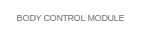
[diagram: root canvas - part 1/9, top right region]
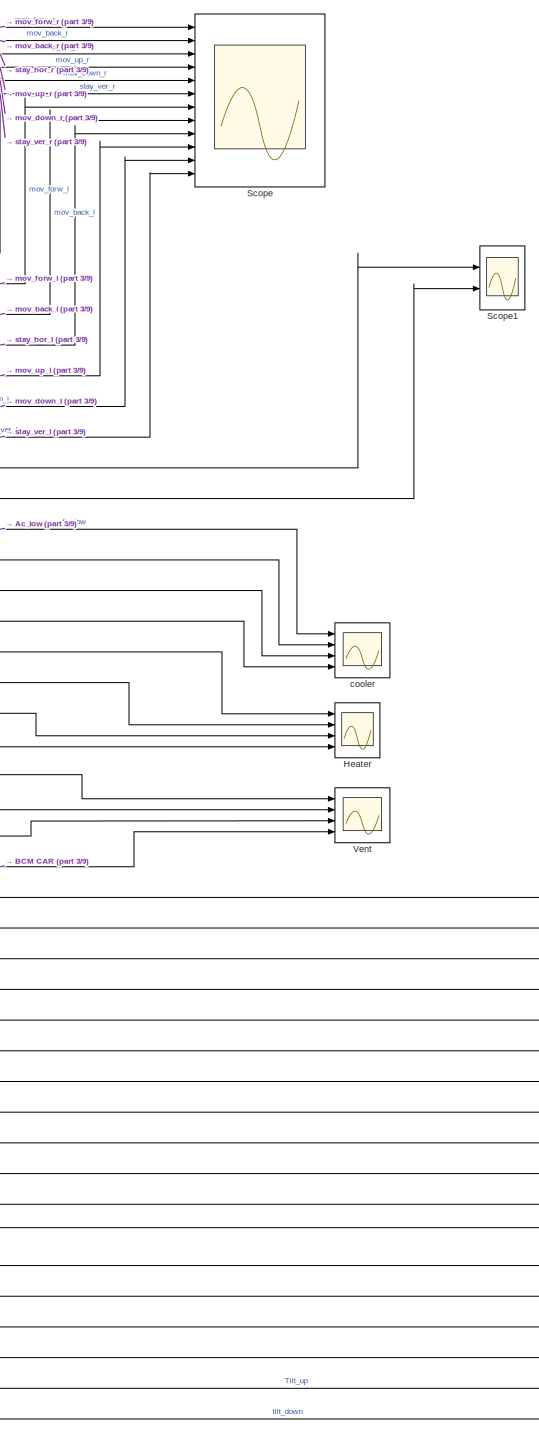
[diagram: root canvas - part 2/9, middle right region]
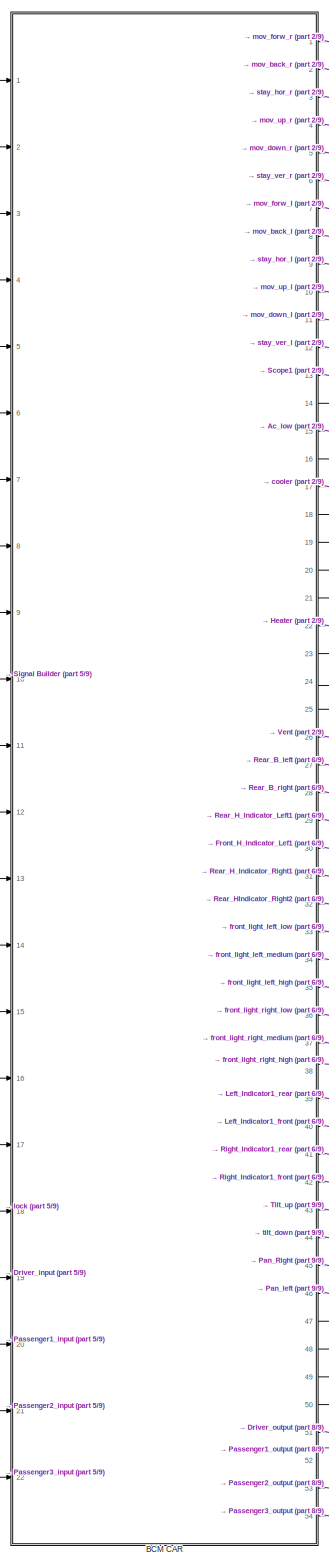
[diagram: root canvas - part 3/9, center side, full height]
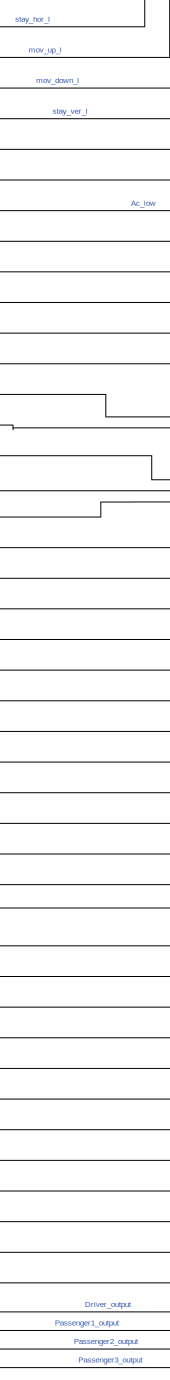
[diagram: root canvas - part 4/9, central region]
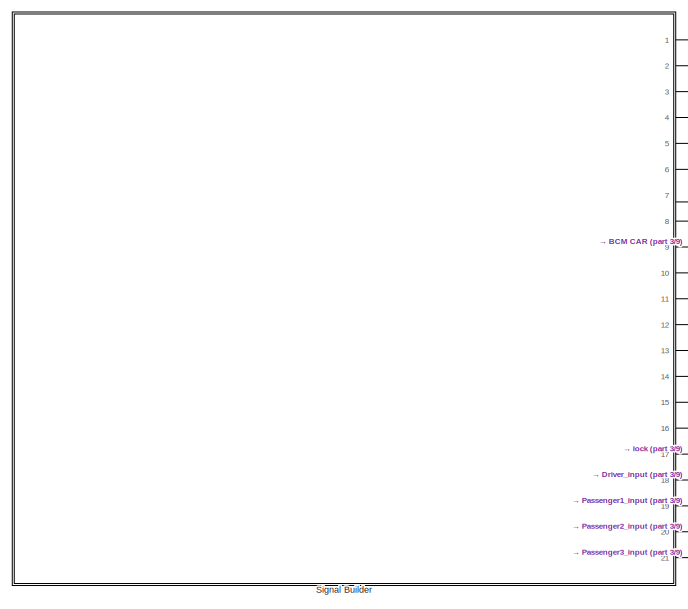
[diagram: root canvas - part 5/9, middle left region]
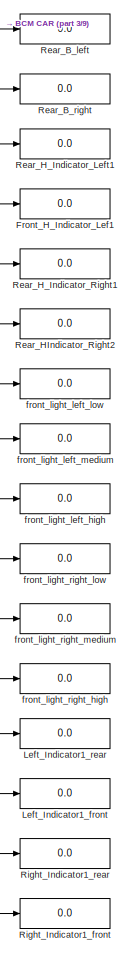
[diagram: root canvas - part 6/9, middle right region]
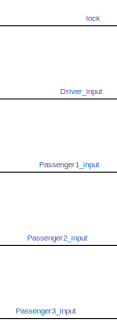
[diagram: root canvas - part 7/9, bottom center region]
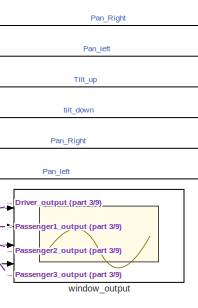
[diagram: root canvas - part 8/9, bottom right region]
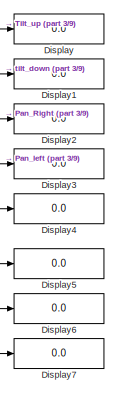
[diagram: root canvas - part 9/9, bottom right region]
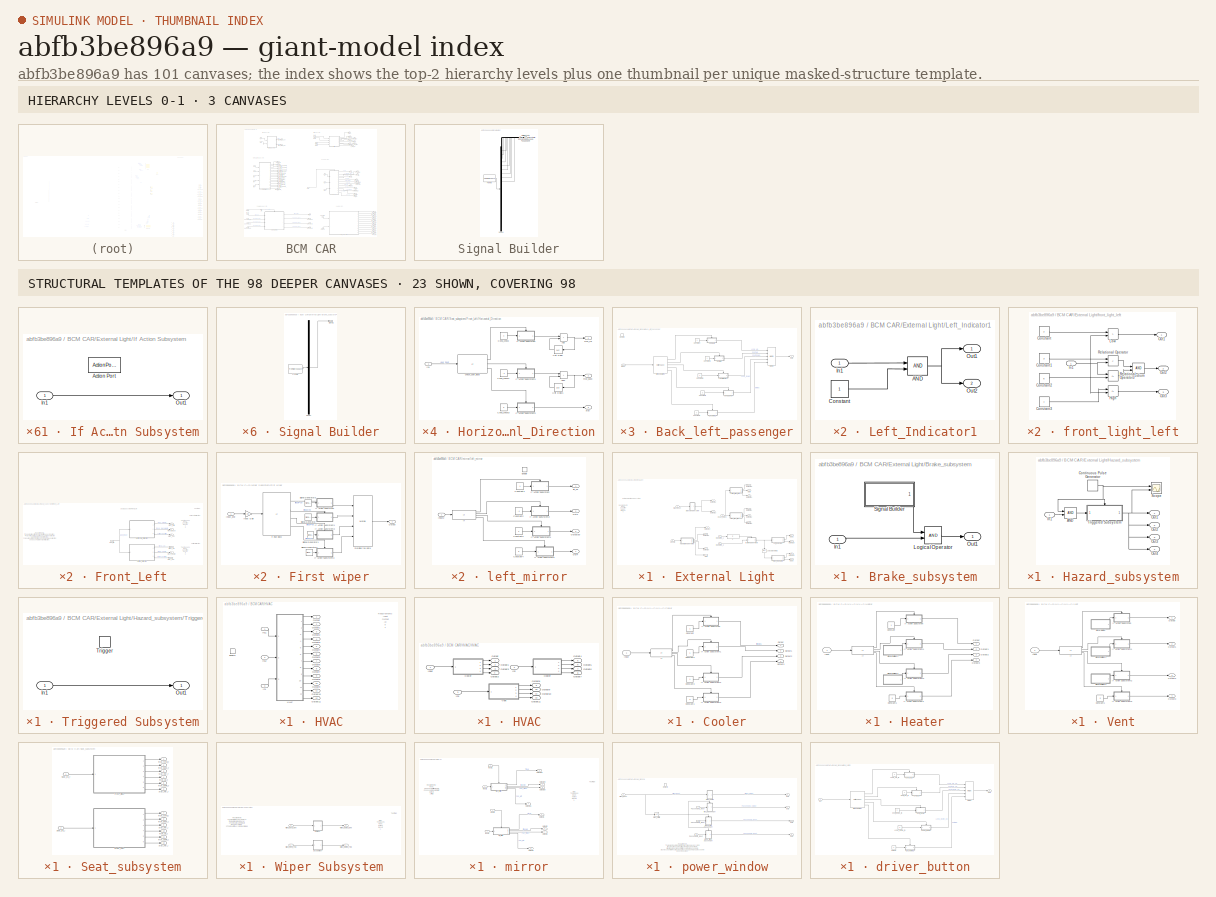
[diagram: thumbnail index - top-2 hierarchy levels (3 canvases) + 23 structural-template representatives of the remaining 98 canvases]
MODEL slx_abfb3be896a9
KIND model
CONFIG AbsTol = auto
CONFIG EnableMultiTasking = off
CONFIG FixedStep = auto
CONFIG MaxStep = auto
CONFIG MinStep = auto
CONFIG RelTol = 1e-3
CONFIG SampleTimeConstraint = Unconstrained
CONFIG SolverName = VariableStepAuto
CONFIG StartTime = 0.0
CONFIG StopTime = 10
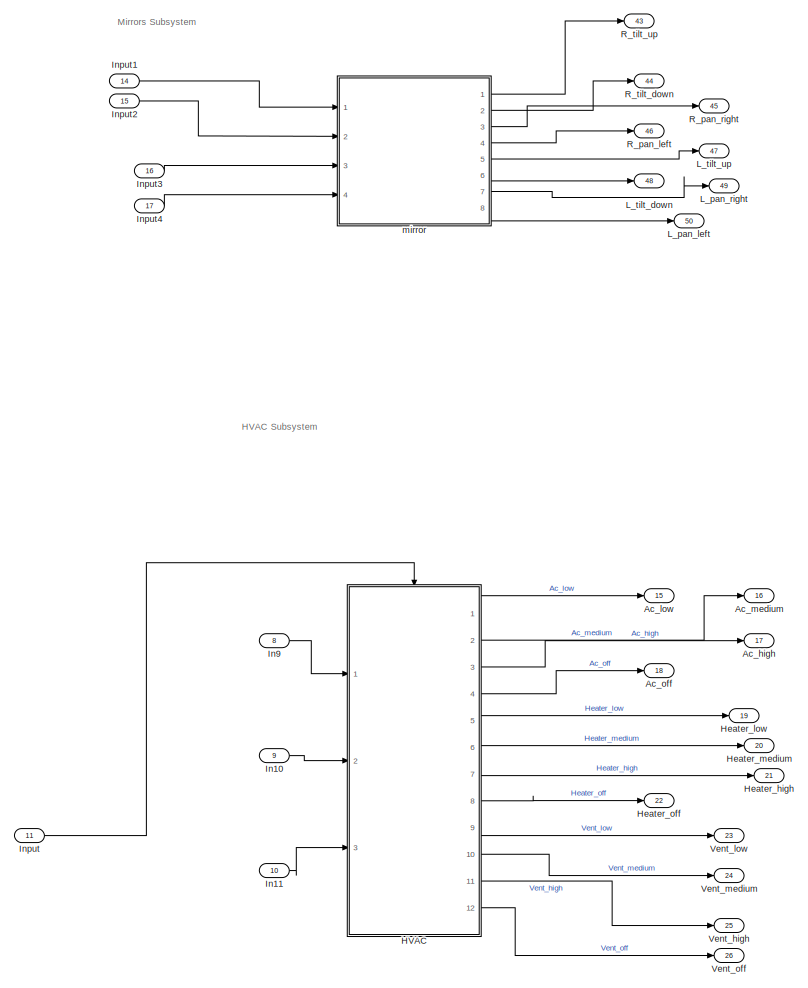
[diagram: BCM CAR - part 1/4, top right region]
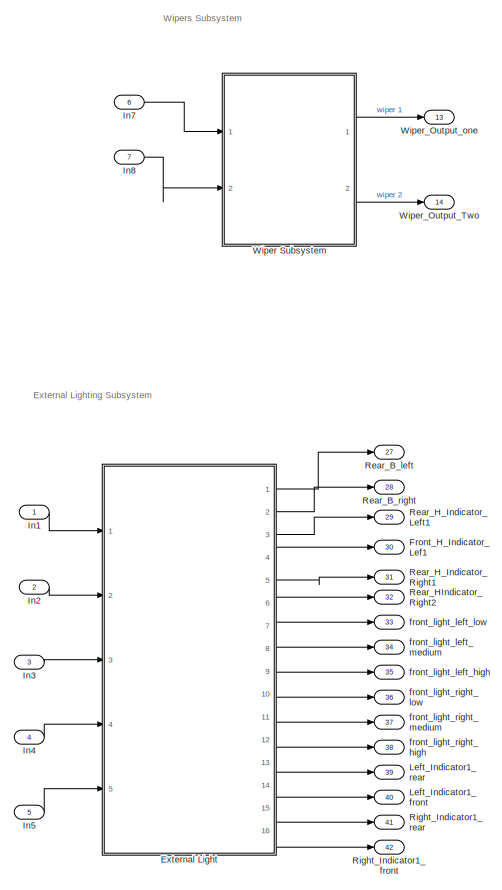
[diagram: BCM CAR - part 2/4, top left region]
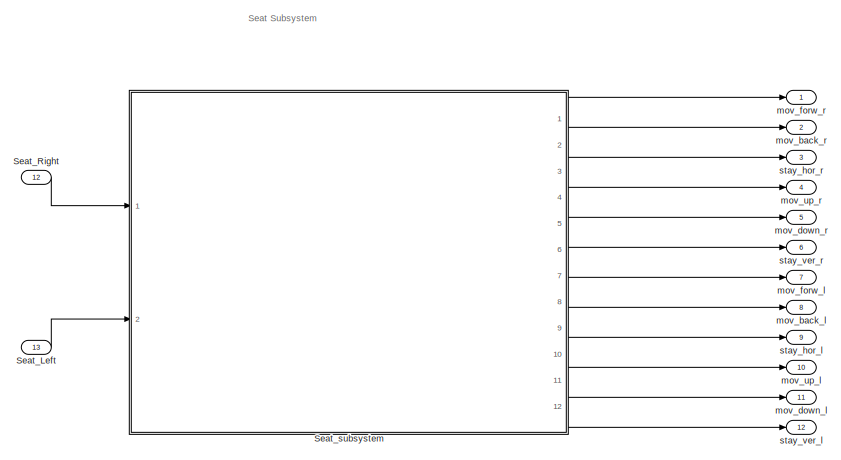
[diagram: BCM CAR - part 3/4, bottom right region]
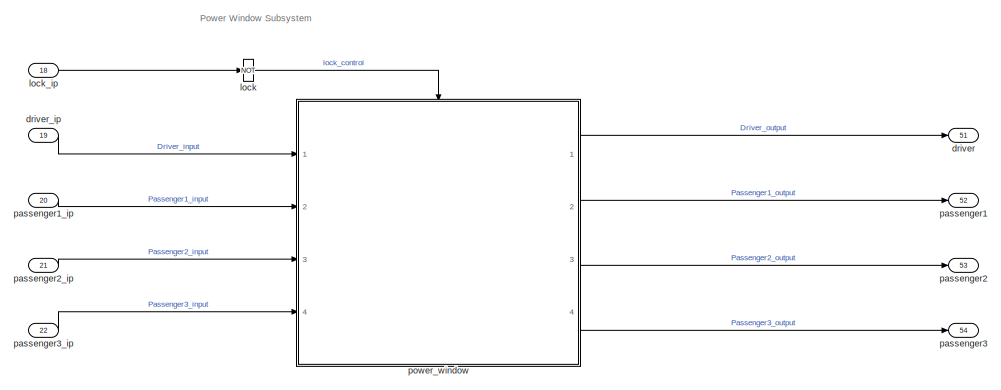
[diagram: BCM CAR - part 4/4, bottom left region]
BLOCK [SubSystem] BCM CAR
  Ports = [22, 54]
  RequestExecContextInheritance = off
BLOCK [Outport] BCM CAR/Ac_high
  Port = 17
BLOCK [Outport] BCM CAR/Ac_low
  Port = 15
BLOCK [Outport] BCM CAR/Ac_medium
  Port = 16
BLOCK [Outport] BCM CAR/Ac_off
  Port = 18
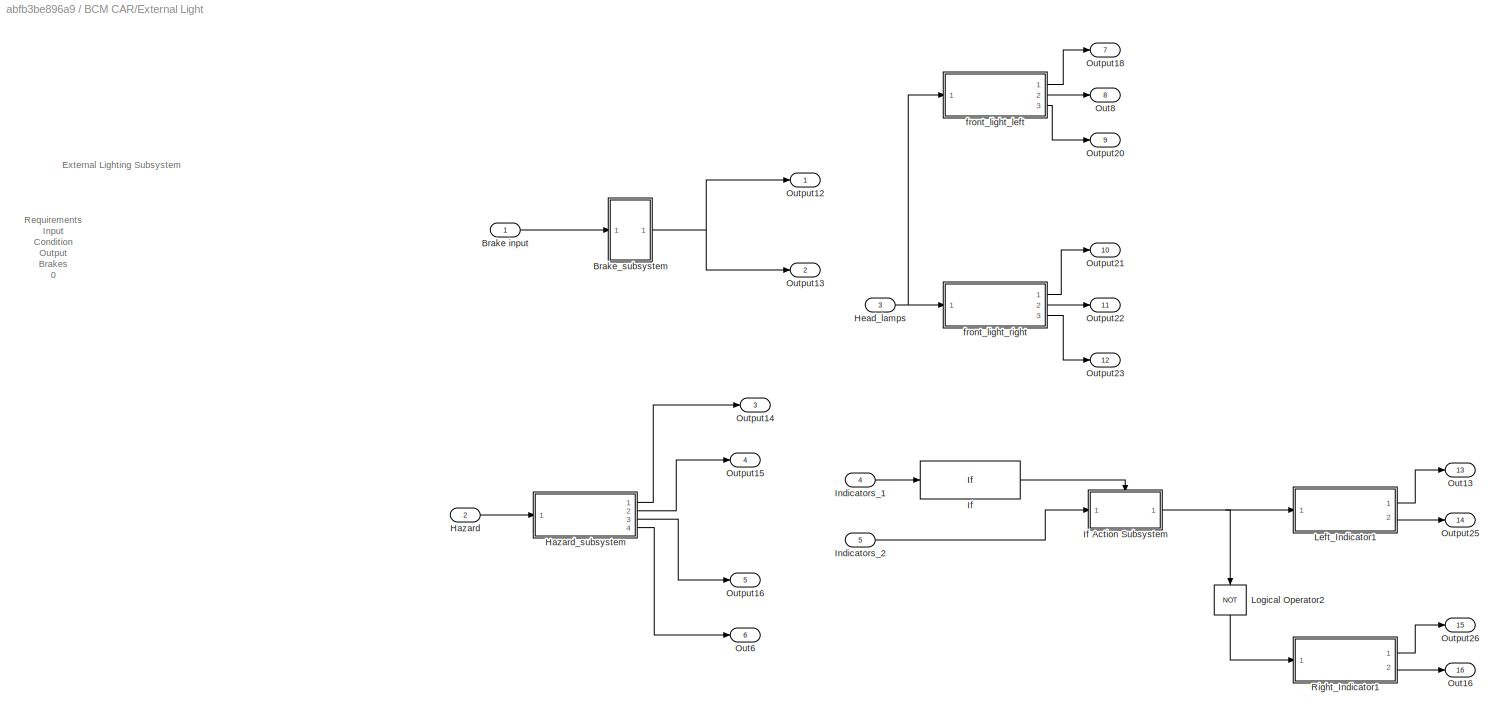
BLOCK [SubSystem] BCM CAR/External Light
  Ports = [5, 16]
  RequestExecContextInheritance = off
  TreatAsAtomicUnit = on
BLOCK [Inport] BCM CAR/External Light/Brake input
BLOCK [SubSystem] BCM CAR/External Light/Brake_subsystem
  Ports = [1, 1]
  RequestExecContextInheritance = off
BLOCK [Inport] BCM CAR/External Light/Brake_subsystem/In1
BLOCK [Logic] BCM CAR/External Light/Brake_subsystem/Logical Operator
  AllPortsSameDT = off
  OutDataTypeStr = boolean
  Ports = [2, 1]
BLOCK [Outport] BCM CAR/External Light/Brake_subsystem/Out1
BLOCK [SubSystem] BCM CAR/External Light/Brake_subsystem/Signal Builder
  ClipboardFcn = sigbuilder_block('clipboard');
  CloseFcn = sigbuilder_block('close');
  ContinueFcn = sigbuilder_block('continue');
  CopyFcn = sigbuilder_block('copy');
  DeleteFcn = sigbuilder_block('delete');
  LoadFcn = sigbuilder_block('load');
  MaskHideContents = on
  ModelCloseFcn = sigbuilder_block('modelClose');
  NameChangeFcn = sigbuilder_block('namechange');
  OpenFcn = sigbuilder_block('open',[437.6 153 550.4 359.25 ]);
  PauseFcn = sigbuilder_block('pause');
  Ports = [0, 1]
  PreSaveFcn = sigbuilder_block('preSave');
  RequestExecContextInheritance = off
  StartFcn = sigbuilder_block('start');
  StopFcn = sigbuilder_block('stop');
  Tag = STV Subsys
BLOCK [Demux] BCM CAR/External Light/Brake_subsystem/Signal Builder/Demux
  DisplayOption = none
  Outputs = 1
  Ports = [1, 1]
  Tag = STV Demux
BLOCK [FromWorkspace] BCM CAR/External Light/Brake_subsystem/Signal Builder/FromWs
  Tag = STV FromWs
  VariableName = tuvar
BLOCK [Outport] BCM CAR/External Light/Brake_subsystem/Signal Builder/Signal 1
  Tag = STV Outport
BLOCK [Inport] BCM CAR/External Light/Hazard
  Port = 2
BLOCK [SubSystem] BCM CAR/External Light/Hazard_subsystem
  Ports = [1, 4]
  RequestExecContextInheritance = off
BLOCK [Logic] BCM CAR/External Light/Hazard_subsystem/AND
  AllPortsSameDT = off
  IconShape = distinctive
  OutDataTypeStr = boolean
  Ports = [2, 1]
BLOCK [DiscretePulseGenerator] BCM CAR/External Light/Hazard_subsystem/Continuous Pulse Generator
  Period = 1
  Ports = [0, 1]
  PulseType = Time based
  PulseWidth = 50
BLOCK [Inport] BCM CAR/External Light/Hazard_subsystem/In1
BLOCK [Outport] BCM CAR/External Light/Hazard_subsystem/Out1
BLOCK [Outport] BCM CAR/External Light/Hazard_subsystem/Out2
  Port = 2
BLOCK [Outport] BCM CAR/External Light/Hazard_subsystem/Out3
  Port = 3
BLOCK [Outport] BCM CAR/External Light/Hazard_subsystem/Out4
  Port = 4
BLOCK [Scope] BCM CAR/External Light/Hazard_subsystem/Scope
  Floating = off
  NumInputPorts = 2
  Ports = [2]
  ScopeSpecificationString = Simulink.scopes.TimeScopeBlockCfg('CurrentConfiguration', extmgr.ConfigurationSet(extmgr.Configuration('Core','General UI',true),extmgr.Configuration('Core','Source UI',true),extmgr.Configuration('Sources','WiredSimulink',true),extmgr.Configuration('Visuals','Time Domain',true,'SerializedDisplays',{struct('MinYLimReal','-0.125','MaxYLimReal','1.125','YLabelReal','','MinYLimMag','0.00000','MaxYLimM...<+1427ch>
BLOCK [SubSystem] BCM CAR/External Light/Hazard_subsystem/Triggered Subsystem
  Ports = [1, 1, 0, 1]
  RequestExecContextInheritance = off
  TreatAsAtomicUnit = on
BLOCK [Inport] BCM CAR/External Light/Hazard_subsystem/Triggered Subsystem/In1
BLOCK [Outport] BCM CAR/External Light/Hazard_subsystem/Triggered Subsystem/Out1
BLOCK [TriggerPort] BCM CAR/External Light/Hazard_subsystem/Triggered Subsystem/Trigger
  Ports = []
  StatesWhenEnabling = held
  TriggerType = either
  VariantControl = Variant
BLOCK [Inport] BCM CAR/External Light/Head_lamps
  Port = 3
BLOCK [If] BCM CAR/External Light/If
  IfExpression = u1 == 1
  Ports = [1, 1]
  ShowElse = off
BLOCK [SubSystem] BCM CAR/External Light/If Action Subsystem
  Ports = [1, 1, 0, 0, 0, 0, 0, 1]
  RequestExecContextInheritance = off
  TreatAsAtomicUnit = on
BLOCK [ActionPort] BCM CAR/External Light/If Action Subsystem/Action Port
  ActionPortLabel = if(u1 == 1)
BLOCK [Inport] BCM CAR/External Light/If Action Subsystem/In1
BLOCK [Outport] BCM CAR/External Light/If Action Subsystem/Out1
BLOCK [Inport] BCM CAR/External Light/Indicators_1
  Port = 4
BLOCK [Inport] BCM CAR/External Light/Indicators_2
  Port = 5
BLOCK [SubSystem] BCM CAR/External Light/Left_Indicator1
  Ports = [1, 2]
  RequestExecContextInheritance = off
BLOCK [Logic] BCM CAR/External Light/Left_Indicator1/AND
  AllPortsSameDT = off
  IconShape = distinctive
  OutDataTypeStr = boolean
  Ports = [2, 1]
BLOCK [Constant] BCM CAR/External Light/Left_Indicator1/Constant
BLOCK [Inport] BCM CAR/External Light/Left_Indicator1/In1
BLOCK [Outport] BCM CAR/External Light/Left_Indicator1/Out1
BLOCK [Outport] BCM CAR/External Light/Left_Indicator1/Out2
  Port = 2
BLOCK [Logic] BCM CAR/External Light/Logical Operator2
  AllPortsSameDT = off
  NameLocation = left
  Operator = NOT
  OutDataTypeStr = boolean
  Ports = [1, 1]
BLOCK [Outport] BCM CAR/External Light/Out13
  Port = 13
BLOCK [Outport] BCM CAR/External Light/Out16
  Port = 16
BLOCK [Outport] BCM CAR/External Light/Out6
  Port = 6
BLOCK [Outport] BCM CAR/External Light/Out8
  Port = 8
BLOCK [Outport] BCM CAR/External Light/Output12
BLOCK [Outport] BCM CAR/External Light/Output13
  Port = 2
BLOCK [Outport] BCM CAR/External Light/Output14
  Port = 3
BLOCK [Outport] BCM CAR/External Light/Output15
  Port = 4
BLOCK [Outport] BCM CAR/External Light/Output16
  Port = 5
BLOCK [Outport] BCM CAR/External Light/Output18
  Port = 7
BLOCK [Outport] BCM CAR/External Light/Output20
  Port = 9
BLOCK [Outport] BCM CAR/External Light/Output21
  Port = 10
BLOCK [Outport] BCM CAR/External Light/Output22
  Port = 11
BLOCK [Outport] BCM CAR/External Light/Output23
  Port = 12
BLOCK [Outport] BCM CAR/External Light/Output25
  Port = 14
BLOCK [Outport] BCM CAR/External Light/Output26
  Port = 15
BLOCK [SubSystem] BCM CAR/External Light/Right_Indicator1
  Ports = [1, 2]
  RequestExecContextInheritance = off
BLOCK [Logic] BCM CAR/External Light/Right_Indicator1/AND
  AllPortsSameDT = off
  IconShape = distinctive
  OutDataTypeStr = boolean
  Ports = [2, 1]
BLOCK [Constant] BCM CAR/External Light/Right_Indicator1/Constant
BLOCK [Inport] BCM CAR/External Light/Right_Indicator1/In1
BLOCK [Outport] BCM CAR/External Light/Right_Indicator1/Out1
BLOCK [Outport] BCM CAR/External Light/Right_Indicator1/Out2
  Port = 2
BLOCK [SubSystem] BCM CAR/External Light/front_light_left
  Ports = [1, 3]
  RequestExecContextInheritance = off
BLOCK [Constant] BCM CAR/External Light/front_light_left/Constant
  Value = 2
BLOCK [Constant] BCM CAR/External Light/front_light_left/Constant1
  Value = 3
BLOCK [Constant] BCM CAR/External Light/front_light_left/Constant2
  Value = 5
BLOCK [Constant] BCM CAR/External Light/front_light_left/Constant3
  Value = 7
BLOCK [RelationalOperator] BCM CAR/External Light/front_light_left/High
  InputSameDT = off
  Operator = <=
  OutDataTypeStr = boolean
  Ports = [2, 1]
  RndMeth = Simplest
BLOCK [Inport] BCM CAR/External Light/front_light_left/In1
BLOCK [RelationalOperator] BCM CAR/External Light/front_light_left/Low
  InputSameDT = off
  Operator = >
  OutDataTypeStr = boolean
  Ports = [2, 1]
  RndMeth = Simplest
BLOCK [Logic] BCM CAR/External Light/front_light_left/Medium
  AllPortsSameDT = off
  IconShape = distinctive
  OutDataTypeStr = boolean
  Ports = [2, 1]
BLOCK [Outport] BCM CAR/External Light/front_light_left/Out1
BLOCK [Outport] BCM CAR/External Light/front_light_left/Out2
  Port = 2
BLOCK [Outport] BCM CAR/External Light/front_light_left/Out3
  Port = 3
BLOCK [RelationalOperator] BCM CAR/External Light/front_light_left/Relational Operator
  InputSameDT = off
  Operator = <
  OutDataTypeStr = boolean
  Ports = [2, 1]
  RndMeth = Simplest
BLOCK [RelationalOperator] BCM CAR/External Light/front_light_left/Relational Operator3
  InputSameDT = off
  Operator = <=
  OutDataTypeStr = boolean
  Ports = [2, 1]
  RndMeth = Simplest
BLOCK [SubSystem] BCM CAR/External Light/front_light_right
  Ports = [1, 3]
  RequestExecContextInheritance = off
BLOCK [Constant] BCM CAR/External Light/front_light_right/Constant
  Value = 2
BLOCK [Constant] BCM CAR/External Light/front_light_right/Constant1
  Value = 3
BLOCK [Constant] BCM CAR/External Light/front_light_right/Constant2
  Value = 5
BLOCK [Constant] BCM CAR/External Light/front_light_right/Constant3
  Value = 7
BLOCK [RelationalOperator] BCM CAR/External Light/front_light_right/High
  InputSameDT = off
  Operator = <=
  OutDataTypeStr = boolean
  Ports = [2, 1]
  RndMeth = Simplest
BLOCK [Inport] BCM CAR/External Light/front_light_right/In1
BLOCK [RelationalOperator] BCM CAR/External Light/front_light_right/Low
  InputSameDT = off
  Operator = >
  OutDataTypeStr = boolean
  Ports = [2, 1]
  RndMeth = Simplest
BLOCK [Logic] BCM CAR/External Light/front_light_right/Medium
  AllPortsSameDT = off
  IconShape = distinctive
  OutDataTypeStr = boolean
  Ports = [2, 1]
BLOCK [Outport] BCM CAR/External Light/front_light_right/Out1
BLOCK [Outport] BCM CAR/External Light/front_light_right/Out2
  Port = 2
BLOCK [Outport] BCM CAR/External Light/front_light_right/Out3
  Port = 3
BLOCK [RelationalOperator] BCM CAR/External Light/front_light_right/Relational Operator
  InputSameDT = off
  Operator = <
  OutDataTypeStr = boolean
  Ports = [2, 1]
  RndMeth = Simplest
BLOCK [RelationalOperator] BCM CAR/External Light/front_light_right/Relational Operator3
  InputSameDT = off
  Operator = <=
  OutDataTypeStr = boolean
  Ports = [2, 1]
  RndMeth = Simplest
BLOCK [Outport] BCM CAR/Front_H_Indicator_Lef1
  Port = 30
BLOCK [SubSystem] BCM CAR/HVAC
  Ports = [3, 12, 1]
  RequestExecContextInheritance = off
BLOCK [EnablePort] BCM CAR/HVAC/Enable
  Ports = []
BLOCK [SubSystem] BCM CAR/HVAC/HVAC
  Ports = [3, 12]
  RequestExecContextInheritance = off
BLOCK [SubSystem] BCM CAR/HVAC/HVAC/Cooler
  Ports = [1, 4]
  RequestExecContextInheritance = off
BLOCK [Constant] BCM CAR/HVAC/HVAC/Cooler/Constant
BLOCK [Constant] BCM CAR/HVAC/HVAC/Cooler/Constant1
  Value = 0
BLOCK [Constant] BCM CAR/HVAC/HVAC/Cooler/Constant2
BLOCK [Constant] BCM CAR/HVAC/HVAC/Cooler/Constant3
BLOCK [If] BCM CAR/HVAC/HVAC/Cooler/If
  ElseIfExpressions = u1 == 2, u1 == 3
  IfExpression = u1 == 1
  Ports = [1, 4]
BLOCK [SubSystem] BCM CAR/HVAC/HVAC/Cooler/If Action Subsystem
  Ports = [1, 1, 0, 0, 0, 0, 0, 1]
  RequestExecContextInheritance = off
  TreatAsAtomicUnit = on
BLOCK [ActionPort] BCM CAR/HVAC/HVAC/Cooler/If Action Subsystem/Action Port
  ActionPortLabel = if(u1 == 1)
BLOCK [Inport] BCM CAR/HVAC/HVAC/Cooler/If Action Subsystem/In1
BLOCK [Outport] BCM CAR/HVAC/HVAC/Cooler/If Action Subsystem/Out1
BLOCK [SubSystem] BCM CAR/HVAC/HVAC/Cooler/If Action Subsystem1
  Ports = [1, 1, 0, 0, 0, 0, 0, 1]
  RequestExecContextInheritance = off
  TreatAsAtomicUnit = on
BLOCK [ActionPort] BCM CAR/HVAC/HVAC/Cooler/If Action Subsystem1/Action Port
  ActionPortLabel = elseif(u1 == 2)
BLOCK [Inport] BCM CAR/HVAC/HVAC/Cooler/If Action Subsystem1/In1
BLOCK [Outport] BCM CAR/HVAC/HVAC/Cooler/If Action Subsystem1/Output1
BLOCK [SubSystem] BCM CAR/HVAC/HVAC/Cooler/If Action Subsystem2
  Ports = [1, 1, 0, 0, 0, 0, 0, 1]
  RequestExecContextInheritance = off
  TreatAsAtomicUnit = on
BLOCK [ActionPort] BCM CAR/HVAC/HVAC/Cooler/If Action Subsystem2/Action Port
  ActionPortLabel = elseif( u1 == 3)
BLOCK [Inport] BCM CAR/HVAC/HVAC/Cooler/If Action Subsystem2/In1
BLOCK [Outport] BCM CAR/HVAC/HVAC/Cooler/If Action Subsystem2/Out1
BLOCK [SubSystem] BCM CAR/HVAC/HVAC/Cooler/If Action Subsystem3
  Ports = [1, 1, 0, 0, 0, 0, 0, 1]
  RequestExecContextInheritance = off
  TreatAsAtomicUnit = on
BLOCK [ActionPort] BCM CAR/HVAC/HVAC/Cooler/If Action Subsystem3/Action Port
  ActionPortLabel = else
BLOCK [Inport] BCM CAR/HVAC/HVAC/Cooler/If Action Subsystem3/In1
BLOCK [Outport] BCM CAR/HVAC/HVAC/Cooler/If Action Subsystem3/Out1
BLOCK [Inport] BCM CAR/HVAC/HVAC/Cooler/Input
BLOCK [Outport] BCM CAR/HVAC/HVAC/Cooler/Output
BLOCK [Outport] BCM CAR/HVAC/HVAC/Cooler/Output1
  Port = 2
BLOCK [Outport] BCM CAR/HVAC/HVAC/Cooler/Output2
  Port = 3
BLOCK [Outport] BCM CAR/HVAC/HVAC/Cooler/Output3
  Port = 4
BLOCK [SubSystem] BCM CAR/HVAC/HVAC/Heater
  Ports = [1, 4]
  RequestExecContextInheritance = off
BLOCK [Constant] BCM CAR/HVAC/HVAC/Heater/Constant
BLOCK [Constant] BCM CAR/HVAC/HVAC/Heater/Constant1
  Value = 0
BLOCK [If] BCM CAR/HVAC/HVAC/Heater/If
  ElseIfExpressions = u1 == 2, u1 == 3
  IfExpression = u1 == 1
  Ports = [1, 4]
BLOCK [SubSystem] BCM CAR/HVAC/HVAC/Heater/If Action Subsystem
  Ports = [1, 1, 0, 0, 0, 0, 0, 1]
  RequestExecContextInheritance = off
  TreatAsAtomicUnit = on
BLOCK [ActionPort] BCM CAR/HVAC/HVAC/Heater/If Action Subsystem/Action Port
  ActionPortLabel = if(u1 == 1)
BLOCK [Inport] BCM CAR/HVAC/HVAC/Heater/If Action Subsystem/In1
BLOCK [Outport] BCM CAR/HVAC/HVAC/Heater/If Action Subsystem/Output
BLOCK [SubSystem] BCM CAR/HVAC/HVAC/Heater/If Action Subsystem1
  Ports = [1, 1, 0, 0, 0, 0, 0, 1]
  RequestExecContextInheritance = off
  TreatAsAtomicUnit = on
BLOCK [ActionPort] BCM CAR/HVAC/HVAC/Heater/If Action Subsystem1/Action Port
  ActionPortLabel = elseif(u1 == 2)
BLOCK [Inport] BCM CAR/HVAC/HVAC/Heater/If Action Subsystem1/In1
BLOCK [Outport] BCM CAR/HVAC/HVAC/Heater/If Action Subsystem1/Out1
BLOCK [SubSystem] BCM CAR/HVAC/HVAC/Heater/If Action Subsystem2
  Ports = [1, 1, 0, 0, 0, 0, 0, 1]
  RequestExecContextInheritance = off
  TreatAsAtomicUnit = on
BLOCK [ActionPort] BCM CAR/HVAC/HVAC/Heater/If Action Subsystem2/Action Port
  ActionPortLabel = elseif( u1 == 3)
BLOCK [Inport] BCM CAR/HVAC/HVAC/Heater/If Action Subsystem2/In1
BLOCK [Outport] BCM CAR/HVAC/HVAC/Heater/If Action Subsystem2/Out1
BLOCK [SubSystem] BCM CAR/HVAC/HVAC/Heater/If Action Subsystem3
  Ports = [1, 1, 0, 0, 0, 0, 0, 1]
  RequestExecContextInheritance = off
  TreatAsAtomicUnit = on
BLOCK [ActionPort] BCM CAR/HVAC/HVAC/Heater/If Action Subsystem3/Action Port
  ActionPortLabel = else
BLOCK [Inport] BCM CAR/HVAC/HVAC/Heater/If Action Subsystem3/In1
BLOCK [Outport] BCM CAR/HVAC/HVAC/Heater/If Action Subsystem3/Out1
BLOCK [Inport] BCM CAR/HVAC/HVAC/Heater/Input
BLOCK [Outport] BCM CAR/HVAC/HVAC/Heater/Output
BLOCK [Outport] BCM CAR/HVAC/HVAC/Heater/Output1
  Port = 2
BLOCK [Outport] BCM CAR/HVAC/HVAC/Heater/Output2
  Port = 3
BLOCK [Outport] BCM CAR/HVAC/HVAC/Heater/Output3
  Port = 4
BLOCK [SubSystem] BCM CAR/HVAC/HVAC/Heater/Signal Builder1
  ClipboardFcn = sigbuilder_block('clipboard');
  CloseFcn = sigbuilder_block('close');
  ContinueFcn = sigbuilder_block('continue');
  CopyFcn = sigbuilder_block('copy');
  DeleteFcn = sigbuilder_block('delete');
  LoadFcn = sigbuilder_block('load');
  MaskHideContents = on
  ModelCloseFcn = sigbuilder_block('modelClose');
  NameChangeFcn = sigbuilder_block('namechange');
  OpenFcn = sigbuilder_block('open',[437.6 153 550.4 359.25 ]);
  PauseFcn = sigbuilder_block('pause');
  Ports = [0, 1]
  PreSaveFcn = sigbuilder_block('preSave');
  RequestExecContextInheritance = off
  StartFcn = sigbuilder_block('start');
  StopFcn = sigbuilder_block('stop');
  Tag = STV Subsys
BLOCK [Demux] BCM CAR/HVAC/HVAC/Heater/Signal Builder1/Demux
  DisplayOption = none
  Outputs = 1
  Ports = [1, 1]
  Tag = STV Demux
BLOCK [FromWorkspace] BCM CAR/HVAC/HVAC/Heater/Signal Builder1/FromWs
  Tag = STV FromWs
  VariableName = tuvar
BLOCK [Outport] BCM CAR/HVAC/HVAC/Heater/Signal Builder1/Signal 2
  Tag = STV Outport
BLOCK [SubSystem] BCM CAR/HVAC/HVAC/Heater/Signal Builder2
  ClipboardFcn = sigbuilder_block('clipboard');
  CloseFcn = sigbuilder_block('close');
  ContinueFcn = sigbuilder_block('continue');
  CopyFcn = sigbuilder_block('copy');
  DeleteFcn = sigbuilder_block('delete');
  LoadFcn = sigbuilder_block('load');
  MaskHideContents = on
  ModelCloseFcn = sigbuilder_block('modelClose');
  NameChangeFcn = sigbuilder_block('namechange');
  OpenFcn = sigbuilder_block('open',[437.6 153 550.4 359.25 ]);
  PauseFcn = sigbuilder_block('pause');
  Ports = [0, 1]
  PreSaveFcn = sigbuilder_block('preSave');
  RequestExecContextInheritance = off
  StartFcn = sigbuilder_block('start');
  StopFcn = sigbuilder_block('stop');
  Tag = STV Subsys
BLOCK [Demux] BCM CAR/HVAC/HVAC/Heater/Signal Builder2/Demux
  DisplayOption = none
  Outputs = 1
  Ports = [1, 1]
  Tag = STV Demux
BLOCK [FromWorkspace] BCM CAR/HVAC/HVAC/Heater/Signal Builder2/FromWs
  Tag = STV FromWs
  VariableName = tuvar
BLOCK [Outport] BCM CAR/HVAC/HVAC/Heater/Signal Builder2/Signal 1
  Tag = STV Outport
BLOCK [Inport] BCM CAR/HVAC/HVAC/In2
  Port = 2
BLOCK [Inport] BCM CAR/HVAC/HVAC/In3
  Port = 3
BLOCK [Inport] BCM CAR/HVAC/HVAC/Input
BLOCK [Outport] BCM CAR/HVAC/HVAC/Output
BLOCK [Outport] BCM CAR/HVAC/HVAC/Output1
  Port = 2
BLOCK [Outport] BCM CAR/HVAC/HVAC/Output10
  Port = 11
BLOCK [Outport] BCM CAR/HVAC/HVAC/Output11
  Port = 12
BLOCK [Outport] BCM CAR/HVAC/HVAC/Output2
  Port = 4
BLOCK [Outport] BCM CAR/HVAC/HVAC/Output3
  Port = 3
BLOCK [Outport] BCM CAR/HVAC/HVAC/Output4
  Port = 5
BLOCK [Outport] BCM CAR/HVAC/HVAC/Output5
  Port = 6
BLOCK [Outport] BCM CAR/HVAC/HVAC/Output6
  Port = 7
BLOCK [Outport] BCM CAR/HVAC/HVAC/Output7
  Port = 8
BLOCK [Outport] BCM CAR/HVAC/HVAC/Output8
  Port = 9
BLOCK [Outport] BCM CAR/HVAC/HVAC/Output9
  Port = 10
BLOCK [SubSystem] BCM CAR/HVAC/HVAC/Vent
  Ports = [1, 4]
  RequestExecContextInheritance = off
BLOCK [Constant] BCM CAR/HVAC/HVAC/Vent/Constant1
  Value = 0
BLOCK [If] BCM CAR/HVAC/HVAC/Vent/If
  ElseIfExpressions = u1 == 2, u1 == 3
  IfExpression = u1 == 1
  Ports = [1, 4]
BLOCK [SubSystem] BCM CAR/HVAC/HVAC/Vent/If Action Subsystem
  Ports = [1, 1, 0, 0, 0, 0, 0, 1]
  RequestExecContextInheritance = off
  TreatAsAtomicUnit = on
BLOCK [ActionPort] BCM CAR/HVAC/HVAC/Vent/If Action Subsystem/Action Port
  ActionPortLabel = if(u1 == 1)
BLOCK [Inport] BCM CAR/HVAC/HVAC/Vent/If Action Subsystem/In1
BLOCK [Outport] BCM CAR/HVAC/HVAC/Vent/If Action Subsystem/Output
BLOCK [SubSystem] BCM CAR/HVAC/HVAC/Vent/If Action Subsystem1
  Ports = [1, 1, 0, 0, 0, 0, 0, 1]
  RequestExecContextInheritance = off
  TreatAsAtomicUnit = on
BLOCK [ActionPort] BCM CAR/HVAC/HVAC/Vent/If Action Subsystem1/Action Port
  ActionPortLabel = elseif(u1 == 2)
BLOCK [Inport] BCM CAR/HVAC/HVAC/Vent/If Action Subsystem1/In1
BLOCK [Outport] BCM CAR/HVAC/HVAC/Vent/If Action Subsystem1/Out1
BLOCK [SubSystem] BCM CAR/HVAC/HVAC/Vent/If Action Subsystem2
  Ports = [1, 1, 0, 0, 0, 0, 0, 1]
  RequestExecContextInheritance = off
  TreatAsAtomicUnit = on
BLOCK [ActionPort] BCM CAR/HVAC/HVAC/Vent/If Action Subsystem2/Action Port
  ActionPortLabel = elseif( u1 == 3)
BLOCK [Inport] BCM CAR/HVAC/HVAC/Vent/If Action Subsystem2/In1
BLOCK [Outport] BCM CAR/HVAC/HVAC/Vent/If Action Subsystem2/Output2
BLOCK [SubSystem] BCM CAR/HVAC/HVAC/Vent/If Action Subsystem3
  Ports = [1, 1, 0, 0, 0, 0, 0, 1]
  RequestExecContextInheritance = off
  TreatAsAtomicUnit = on
BLOCK [ActionPort] BCM CAR/HVAC/HVAC/Vent/If Action Subsystem3/Action Port
  ActionPortLabel = else
BLOCK [Inport] BCM CAR/HVAC/HVAC/Vent/If Action Subsystem3/In1
BLOCK [Outport] BCM CAR/HVAC/HVAC/Vent/If Action Subsystem3/Output3
BLOCK [Inport] BCM CAR/HVAC/HVAC/Vent/Input
BLOCK [Outport] BCM CAR/HVAC/HVAC/Vent/Output
BLOCK [Outport] BCM CAR/HVAC/HVAC/Vent/Output1
  Port = 2
BLOCK [Outport] BCM CAR/HVAC/HVAC/Vent/Output2
  Port = 3
BLOCK [Outport] BCM CAR/HVAC/HVAC/Vent/Output3
  Port = 4
BLOCK [SubSystem] BCM CAR/HVAC/HVAC/Vent/Signal Builder
  ClipboardFcn = sigbuilder_block('clipboard');
  CloseFcn = sigbuilder_block('close');
  ContinueFcn = sigbuilder_block('continue');
  CopyFcn = sigbuilder_block('copy');
  DeleteFcn = sigbuilder_block('delete');
  LoadFcn = sigbuilder_block('load');
  MaskHideContents = on
  ModelCloseFcn = sigbuilder_block('modelClose');
  NameChangeFcn = sigbuilder_block('namechange');
  OpenFcn = sigbuilder_block('open',[437.6 153 550.4 359.25 ]);
  PauseFcn = sigbuilder_block('pause');
  Ports = [0, 1]
  PreSaveFcn = sigbuilder_block('preSave');
  RequestExecContextInheritance = off
  StartFcn = sigbuilder_block('start');
  StopFcn = sigbuilder_block('stop');
  Tag = STV Subsys
BLOCK [Demux] BCM CAR/HVAC/HVAC/Vent/Signal Builder/Demux
  DisplayOption = none
  Outputs = 1
  Ports = [1, 1]
  Tag = STV Demux
BLOCK [FromWorkspace] BCM CAR/HVAC/HVAC/Vent/Signal Builder/FromWs
  Tag = STV FromWs
  VariableName = tuvar
BLOCK [Outport] BCM CAR/HVAC/HVAC/Vent/Signal Builder/Signal 2
  Tag = STV Outport
BLOCK [SubSystem] BCM CAR/HVAC/HVAC/Vent/Signal Builder1
  ClipboardFcn = sigbuilder_block('clipboard');
  CloseFcn = sigbuilder_block('close');
  ContinueFcn = sigbuilder_block('continue');
  CopyFcn = sigbuilder_block('copy');
  DeleteFcn = sigbuilder_block('delete');
  LoadFcn = sigbuilder_block('load');
  MaskHideContents = on
  ModelCloseFcn = sigbuilder_block('modelClose');
  NameChangeFcn = sigbuilder_block('namechange');
  OpenFcn = sigbuilder_block('open',[437.6 153 550.4 359.25 ]);
  PauseFcn = sigbuilder_block('pause');
  Ports = [0, 1]
  PreSaveFcn = sigbuilder_block('preSave');
  RequestExecContextInheritance = off
  StartFcn = sigbuilder_block('start');
  StopFcn = sigbuilder_block('stop');
  Tag = STV Subsys
BLOCK [Demux] BCM CAR/HVAC/HVAC/Vent/Signal Builder1/Demux
  DisplayOption = none
  Outputs = 1
  Ports = [1, 1]
  Tag = STV Demux
BLOCK [FromWorkspace] BCM CAR/HVAC/HVAC/Vent/Signal Builder1/FromWs
  Tag = STV FromWs
  VariableName = tuvar
BLOCK [Outport] BCM CAR/HVAC/HVAC/Vent/Signal Builder1/Signal 2
  Tag = STV Outport
BLOCK [SubSystem] BCM CAR/HVAC/HVAC/Vent/Signal Builder2
  ClipboardFcn = sigbuilder_block('clipboard');
  CloseFcn = sigbuilder_block('close');
  ContinueFcn = sigbuilder_block('continue');
  CopyFcn = sigbuilder_block('copy');
  DeleteFcn = sigbuilder_block('delete');
  LoadFcn = sigbuilder_block('load');
  MaskHideContents = on
  ModelCloseFcn = sigbuilder_block('modelClose');
  NameChangeFcn = sigbuilder_block('namechange');
  OpenFcn = sigbuilder_block('open',[437.6 153 550.4 359.25 ]);
  PauseFcn = sigbuilder_block('pause');
  Ports = [0, 1]
  PreSaveFcn = sigbuilder_block('preSave');
  RequestExecContextInheritance = off
  StartFcn = sigbuilder_block('start');
  StopFcn = sigbuilder_block('stop');
  Tag = STV Subsys
BLOCK [Demux] BCM CAR/HVAC/HVAC/Vent/Signal Builder2/Demux
  DisplayOption = none
  Outputs = 1
  Ports = [1, 1]
  Tag = STV Demux
BLOCK [FromWorkspace] BCM CAR/HVAC/HVAC/Vent/Signal Builder2/FromWs
  Tag = STV FromWs
  VariableName = tuvar
BLOCK [Outport] BCM CAR/HVAC/HVAC/Vent/Signal Builder2/Signal 1
  Tag = STV Outport
BLOCK [Inport] BCM CAR/HVAC/In1
  Port = 3
BLOCK [Inport] BCM CAR/HVAC/In11
BLOCK [Inport] BCM CAR/HVAC/In12
  Port = 2
BLOCK [Outport] BCM CAR/HVAC/Output
BLOCK [Outport] BCM CAR/HVAC/Output1
  Port = 2
BLOCK [Outport] BCM CAR/HVAC/Output10
  Port = 11
BLOCK [Outport] BCM CAR/HVAC/Output11
  Port = 12
BLOCK [Outport] BCM CAR/HVAC/Output2
  Port = 3
BLOCK [Outport] BCM CAR/HVAC/Output3
  Port = 4
BLOCK [Outport] BCM CAR/HVAC/Output4
  Port = 5
BLOCK [Outport] BCM CAR/HVAC/Output5
  Port = 6
BLOCK [Outport] BCM CAR/HVAC/Output6
  Port = 7
BLOCK [Outport] BCM CAR/HVAC/Output7
  Port = 8
BLOCK [Outport] BCM CAR/HVAC/Output8
  Port = 9
BLOCK [Outport] BCM CAR/HVAC/Output9
  Port = 10
BLOCK [Outport] BCM CAR/Heater_high
  Port = 21
BLOCK [Outport] BCM CAR/Heater_low
  Port = 19
BLOCK [Outport] BCM CAR/Heater_medium
  Port = 20
BLOCK [Outport] BCM CAR/Heater_off
  Port = 22
BLOCK [Inport] BCM CAR/In1
BLOCK [Inport] BCM CAR/In10
  Port = 9
BLOCK [Inport] BCM CAR/In11
  Port = 10
BLOCK [Inport] BCM CAR/In2
  Port = 2
BLOCK [Inport] BCM CAR/In3
  Port = 3
BLOCK [Inport] BCM CAR/In4
  Port = 4
BLOCK [Inport] BCM CAR/In5
  Port = 5
BLOCK [Inport] BCM CAR/In7
  Port = 6
BLOCK [Inport] BCM CAR/In8
  Port = 7
BLOCK [Inport] BCM CAR/In9
  Port = 8
BLOCK [Inport] BCM CAR/Input
  Port = 11
BLOCK [Inport] BCM CAR/Input1
  Port = 14
BLOCK [Inport] BCM CAR/Input2
  Port = 15
BLOCK [Inport] BCM CAR/Input3
  Port = 16
BLOCK [Inport] BCM CAR/Input4
  Port = 17
BLOCK [Outport] BCM CAR/L_pan_left
  Port = 50
BLOCK [Outport] BCM CAR/L_pan_right
  Port = 49
BLOCK [Outport] BCM CAR/L_tilt_down
  Port = 48
BLOCK [Outport] BCM CAR/L_tilt_up
  Port = 47
BLOCK [Outport] BCM CAR/Left_Indicator1_front
  Port = 40
BLOCK [Outport] BCM CAR/Left_Indicator1_rear
  Port = 39
BLOCK [Outport] BCM CAR/R_pan_left
  Port = 46
BLOCK [Outport] BCM CAR/R_pan_right
  Port = 45
BLOCK [Outport] BCM CAR/R_tilt_down
  Port = 44
BLOCK [Outport] BCM CAR/R_tilt_up
  Port = 43
BLOCK [Outport] BCM CAR/Rear_B_left
  Port = 27
BLOCK [Outport] BCM CAR/Rear_B_right
  Port = 28
BLOCK [Outport] BCM CAR/Rear_HIndicator_Right2
  Port = 32
BLOCK [Outport] BCM CAR/Rear_H_Indicator_Left1
  Port = 29
BLOCK [Outport] BCM CAR/Rear_H_Indicator_Right1
  Port = 31
BLOCK [Outport] BCM CAR/Right_Indicator1_front
  Port = 42
BLOCK [Outport] BCM CAR/Right_Indicator1_rear
  Port = 41
BLOCK [Inport] BCM CAR/Seat_Left
  Port = 13
BLOCK [Inport] BCM CAR/Seat_Right
  Port = 12
BLOCK [SubSystem] BCM CAR/Seat_subsystem
  Ports = [2, 12]
  RequestExecContextInheritance = off
  TreatAsAtomicUnit = on
BLOCK [SubSystem] BCM CAR/Seat_subsystem/Front_Left
  Ports = [1, 6]
  RequestExecContextInheritance = off
  TreatAsAtomicUnit = on
BLOCK [SubSystem] BCM CAR/Seat_subsystem/Front_Left/Horizontal_Direction
  Ports = [1, 3]
  RequestExecContextInheritance = off
  TreatAsAtomicUnit = on
BLOCK [Sum] BCM CAR/Seat_subsystem/Front_Left/Horizontal_Direction/Add
  IconShape = rectangular
  Ports = [2, 1]
BLOCK [Sum] BCM CAR/Seat_subsystem/Front_Left/Horizontal_Direction/Add1
  IconShape = rectangular
  Ports = [2, 1]
BLOCK [Constant] BCM CAR/Seat_subsystem/Front_Left/Horizontal_Direction/Cond_check
BLOCK [Constant] BCM CAR/Seat_subsystem/Front_Left/Horizontal_Direction/Cond_check1
  Value = -1
BLOCK [Constant] BCM CAR/Seat_subsystem/Front_Left/Horizontal_Direction/Cond_check3
  Value = 0
BLOCK [SubSystem] BCM CAR/Seat_subsystem/Front_Left/Horizontal_Direction/If Action Subsystem
  Ports = [1, 1, 0, 0, 0, 0, 0, 1]
  RequestExecContextInheritance = off
  TreatAsAtomicUnit = on
BLOCK [ActionPort] BCM CAR/Seat_subsystem/Front_Left/Horizontal_Direction/If Action Subsystem/Action Port
  ActionPortLabel = if(u1 == 1)
BLOCK [Inport] BCM CAR/Seat_subsystem/Front_Left/Horizontal_Direction/If Action Subsystem/In1
BLOCK [Outport] BCM CAR/Seat_subsystem/Front_Left/Horizontal_Direction/If Action Subsystem/Out1
BLOCK [SubSystem] BCM CAR/Seat_subsystem/Front_Left/Horizontal_Direction/If Action Subsystem1
  Ports = [1, 1, 0, 0, 0, 0, 0, 1]
  RequestExecContextInheritance = off
  TreatAsAtomicUnit = on
BLOCK [ActionPort] BCM CAR/Seat_subsystem/Front_Left/Horizontal_Direction/If Action Subsystem1/Action Port
  ActionPortLabel = elseif(u1 == -1)
BLOCK [Inport] BCM CAR/Seat_subsystem/Front_Left/Horizontal_Direction/If Action Subsystem1/In1
BLOCK [Outport] BCM CAR/Seat_subsystem/Front_Left/Horizontal_Direction/If Action Subsystem1/Out1
BLOCK [SubSystem] BCM CAR/Seat_subsystem/Front_Left/Horizontal_Direction/If Action Subsystem2
  Ports = [1, 1, 0, 0, 0, 0, 0, 1]
  RequestExecContextInheritance = off
  TreatAsAtomicUnit = on
BLOCK [ActionPort] BCM CAR/Seat_subsystem/Front_Left/Horizontal_Direction/If Action Subsystem2/Action Port
  ActionPortLabel = else
BLOCK [Inport] BCM CAR/Seat_subsystem/Front_Left/Horizontal_Direction/If Action Subsystem2/In1
BLOCK [Outport] BCM CAR/Seat_subsystem/Front_Left/Horizontal_Direction/If Action Subsystem2/Out1
BLOCK [Inport] BCM CAR/Seat_subsystem/Front_Left/Horizontal_Direction/In1
BLOCK [UnitDelay] BCM CAR/Seat_subsystem/Front_Left/Horizontal_Direction/Unit Delay
  HasFrameUpgradeWarning = on
  SampleTime = -1
BLOCK [UnitDelay] BCM CAR/Seat_subsystem/Front_Left/Horizontal_Direction/Unit Delay1
  HasFrameUpgradeWarning = on
  SampleTime = -1
BLOCK [If] BCM CAR/Seat_subsystem/Front_Left/Horizontal_Direction/check_user_input
  ElseIfExpressions = u1 == -1
  IfExpression = u1 == 1
  Ports = [1, 3]
BLOCK [Outport] BCM CAR/Seat_subsystem/Front_Left/Horizontal_Direction/mov_back
  Port = 2
BLOCK [Outport] BCM CAR/Seat_subsystem/Front_Left/Horizontal_Direction/mov_for
BLOCK [Outport] BCM CAR/Seat_subsystem/Front_Left/Horizontal_Direction/stay
  Port = 3
BLOCK [Inport] BCM CAR/Seat_subsystem/Front_Left/Seat_i//p
BLOCK [SubSystem] BCM CAR/Seat_subsystem/Front_Left/Vertical_Direction
  Ports = [1, 3]
  RequestExecContextInheritance = off
  TreatAsAtomicUnit = on
BLOCK [Sum] BCM CAR/Seat_subsystem/Front_Left/Vertical_Direction/Add
  IconShape = rectangular
  Ports = [2, 1]
BLOCK [Sum] BCM CAR/Seat_subsystem/Front_Left/Vertical_Direction/Add1
  IconShape = rectangular
  Ports = [2, 1]
BLOCK [Constant] BCM CAR/Seat_subsystem/Front_Left/Vertical_Direction/Cond_check
BLOCK [Constant] BCM CAR/Seat_subsystem/Front_Left/Vertical_Direction/Cond_check1
  Value = -1
BLOCK [Constant] BCM CAR/Seat_subsystem/Front_Left/Vertical_Direction/Cond_check3
  Value = 0
BLOCK [SubSystem] BCM CAR/Seat_subsystem/Front_Left/Vertical_Direction/If Action Subsystem
  Ports = [1, 1, 0, 0, 0, 0, 0, 1]
  RequestExecContextInheritance = off
  TreatAsAtomicUnit = on
BLOCK [ActionPort] BCM CAR/Seat_subsystem/Front_Left/Vertical_Direction/If Action Subsystem/Action Port
  ActionPortLabel = if(u1 == 1)
BLOCK [Inport] BCM CAR/Seat_subsystem/Front_Left/Vertical_Direction/If Action Subsystem/In1
BLOCK [Outport] BCM CAR/Seat_subsystem/Front_Left/Vertical_Direction/If Action Subsystem/Out1
BLOCK [SubSystem] BCM CAR/Seat_subsystem/Front_Left/Vertical_Direction/If Action Subsystem1
  Ports = [1, 1, 0, 0, 0, 0, 0, 1]
  RequestExecContextInheritance = off
  TreatAsAtomicUnit = on
BLOCK [ActionPort] BCM CAR/Seat_subsystem/Front_Left/Vertical_Direction/If Action Subsystem1/Action Port
  ActionPortLabel = elseif(u1 == -1)
BLOCK [Inport] BCM CAR/Seat_subsystem/Front_Left/Vertical_Direction/If Action Subsystem1/In1
BLOCK [Outport] BCM CAR/Seat_subsystem/Front_Left/Vertical_Direction/If Action Subsystem1/Out1
BLOCK [SubSystem] BCM CAR/Seat_subsystem/Front_Left/Vertical_Direction/If Action Subsystem2
  Ports = [1, 1, 0, 0, 0, 0, 0, 1]
  RequestExecContextInheritance = off
  TreatAsAtomicUnit = on
BLOCK [ActionPort] BCM CAR/Seat_subsystem/Front_Left/Vertical_Direction/If Action Subsystem2/Action Port
  ActionPortLabel = else
BLOCK [Inport] BCM CAR/Seat_subsystem/Front_Left/Vertical_Direction/If Action Subsystem2/In1
BLOCK [Outport] BCM CAR/Seat_subsystem/Front_Left/Vertical_Direction/If Action Subsystem2/Out1
BLOCK [UnitDelay] BCM CAR/Seat_subsystem/Front_Left/Vertical_Direction/Unit Delay
  HasFrameUpgradeWarning = on
  SampleTime = -1
BLOCK [UnitDelay] BCM CAR/Seat_subsystem/Front_Left/Vertical_Direction/Unit Delay1
  HasFrameUpgradeWarning = on
  SampleTime = -1
BLOCK [If] BCM CAR/Seat_subsystem/Front_Left/Vertical_Direction/check_user_input
  ElseIfExpressions = u1 == -1
  IfExpression = u1 == 1
  Ports = [1, 3]
BLOCK [Outport] BCM CAR/Seat_subsystem/Front_Left/Vertical_Direction/mov_down
  Port = 2
BLOCK [Outport] BCM CAR/Seat_subsystem/Front_Left/Vertical_Direction/mov_up
BLOCK [Outport] BCM CAR/Seat_subsystem/Front_Left/Vertical_Direction/stay
  Port = 3
BLOCK [Inport] BCM CAR/Seat_subsystem/Front_Left/Vertical_Direction/user_input
BLOCK [Outport] BCM CAR/Seat_subsystem/Front_Left/mov_back
  Port = 2
BLOCK [Outport] BCM CAR/Seat_subsystem/Front_Left/mov_down
  Port = 5
BLOCK [Outport] BCM CAR/Seat_subsystem/Front_Left/mov_forw
BLOCK [Outport] BCM CAR/Seat_subsystem/Front_Left/mov_up
  Port = 4
BLOCK [Outport] BCM CAR/Seat_subsystem/Front_Left/stay_hor
  Port = 3
BLOCK [Outport] BCM CAR/Seat_subsystem/Front_Left/stay_ver
  Port = 6
BLOCK [SubSystem] BCM CAR/Seat_subsystem/Front_Right
  Ports = [1, 6]
  RequestExecContextInheritance = off
  TreatAsAtomicUnit = on
BLOCK [SubSystem] BCM CAR/Seat_subsystem/Front_Right/Horizontal_Direction
  Ports = [1, 3]
  RequestExecContextInheritance = off
  TreatAsAtomicUnit = on
BLOCK [Sum] BCM CAR/Seat_subsystem/Front_Right/Horizontal_Direction/Add
  IconShape = rectangular
  Ports = [2, 1]
BLOCK [Sum] BCM CAR/Seat_subsystem/Front_Right/Horizontal_Direction/Add1
  IconShape = rectangular
  Ports = [2, 1]
BLOCK [Constant] BCM CAR/Seat_subsystem/Front_Right/Horizontal_Direction/Cond_check
BLOCK [Constant] BCM CAR/Seat_subsystem/Front_Right/Horizontal_Direction/Cond_check1
  Value = -1
BLOCK [Constant] BCM CAR/Seat_subsystem/Front_Right/Horizontal_Direction/Cond_check3
  Value = 0
BLOCK [SubSystem] BCM CAR/Seat_subsystem/Front_Right/Horizontal_Direction/If Action Subsystem
  Ports = [1, 1, 0, 0, 0, 0, 0, 1]
  RequestExecContextInheritance = off
  TreatAsAtomicUnit = on
BLOCK [ActionPort] BCM CAR/Seat_subsystem/Front_Right/Horizontal_Direction/If Action Subsystem/Action Port
  ActionPortLabel = if(u1 == 1)
BLOCK [Inport] BCM CAR/Seat_subsystem/Front_Right/Horizontal_Direction/If Action Subsystem/In1
BLOCK [Outport] BCM CAR/Seat_subsystem/Front_Right/Horizontal_Direction/If Action Subsystem/Out1
BLOCK [SubSystem] BCM CAR/Seat_subsystem/Front_Right/Horizontal_Direction/If Action Subsystem1
  Ports = [1, 1, 0, 0, 0, 0, 0, 1]
  RequestExecContextInheritance = off
  TreatAsAtomicUnit = on
BLOCK [ActionPort] BCM CAR/Seat_subsystem/Front_Right/Horizontal_Direction/If Action Subsystem1/Action Port
  ActionPortLabel = elseif(u1 == -1)
BLOCK [Inport] BCM CAR/Seat_subsystem/Front_Right/Horizontal_Direction/If Action Subsystem1/In1
BLOCK [Outport] BCM CAR/Seat_subsystem/Front_Right/Horizontal_Direction/If Action Subsystem1/Out1
BLOCK [SubSystem] BCM CAR/Seat_subsystem/Front_Right/Horizontal_Direction/If Action Subsystem2
  Ports = [1, 1, 0, 0, 0, 0, 0, 1]
  RequestExecContextInheritance = off
  TreatAsAtomicUnit = on
BLOCK [ActionPort] BCM CAR/Seat_subsystem/Front_Right/Horizontal_Direction/If Action Subsystem2/Action Port
  ActionPortLabel = else
BLOCK [Inport] BCM CAR/Seat_subsystem/Front_Right/Horizontal_Direction/If Action Subsystem2/In1
BLOCK [Outport] BCM CAR/Seat_subsystem/Front_Right/Horizontal_Direction/If Action Subsystem2/Out1
BLOCK [Inport] BCM CAR/Seat_subsystem/Front_Right/Horizontal_Direction/In1
BLOCK [UnitDelay] BCM CAR/Seat_subsystem/Front_Right/Horizontal_Direction/Unit Delay
  HasFrameUpgradeWarning = on
  SampleTime = -1
BLOCK [UnitDelay] BCM CAR/Seat_subsystem/Front_Right/Horizontal_Direction/Unit Delay1
  HasFrameUpgradeWarning = on
  SampleTime = -1
BLOCK [If] BCM CAR/Seat_subsystem/Front_Right/Horizontal_Direction/check_user_input
  ElseIfExpressions = u1 == -1
  IfExpression = u1 == 1
  Ports = [1, 3]
BLOCK [Outport] BCM CAR/Seat_subsystem/Front_Right/Horizontal_Direction/mov_back
  Port = 2
BLOCK [Outport] BCM CAR/Seat_subsystem/Front_Right/Horizontal_Direction/mov_for
BLOCK [Outport] BCM CAR/Seat_subsystem/Front_Right/Horizontal_Direction/stay
  Port = 3
BLOCK [Inport] BCM CAR/Seat_subsystem/Front_Right/Seat_i//p
BLOCK [SubSystem] BCM CAR/Seat_subsystem/Front_Right/Vertical_Direction
  Ports = [1, 3]
  RequestExecContextInheritance = off
  TreatAsAtomicUnit = on
BLOCK [Sum] BCM CAR/Seat_subsystem/Front_Right/Vertical_Direction/Add
  IconShape = rectangular
  Ports = [2, 1]
BLOCK [Sum] BCM CAR/Seat_subsystem/Front_Right/Vertical_Direction/Add1
  IconShape = rectangular
  Ports = [2, 1]
BLOCK [Constant] BCM CAR/Seat_subsystem/Front_Right/Vertical_Direction/Cond_check
BLOCK [Constant] BCM CAR/Seat_subsystem/Front_Right/Vertical_Direction/Cond_check1
  Value = -1
BLOCK [Constant] BCM CAR/Seat_subsystem/Front_Right/Vertical_Direction/Cond_check3
  Value = 0
BLOCK [SubSystem] BCM CAR/Seat_subsystem/Front_Right/Vertical_Direction/If Action Subsystem
  Ports = [1, 1, 0, 0, 0, 0, 0, 1]
  RequestExecContextInheritance = off
  TreatAsAtomicUnit = on
BLOCK [ActionPort] BCM CAR/Seat_subsystem/Front_Right/Vertical_Direction/If Action Subsystem/Action Port
  ActionPortLabel = if(u1 == 1)
BLOCK [Inport] BCM CAR/Seat_subsystem/Front_Right/Vertical_Direction/If Action Subsystem/In1
BLOCK [Outport] BCM CAR/Seat_subsystem/Front_Right/Vertical_Direction/If Action Subsystem/Out1
BLOCK [SubSystem] BCM CAR/Seat_subsystem/Front_Right/Vertical_Direction/If Action Subsystem1
  Ports = [1, 1, 0, 0, 0, 0, 0, 1]
  RequestExecContextInheritance = off
  TreatAsAtomicUnit = on
BLOCK [ActionPort] BCM CAR/Seat_subsystem/Front_Right/Vertical_Direction/If Action Subsystem1/Action Port
  ActionPortLabel = elseif(u1 == -1)
BLOCK [Inport] BCM CAR/Seat_subsystem/Front_Right/Vertical_Direction/If Action Subsystem1/In1
BLOCK [Outport] BCM CAR/Seat_subsystem/Front_Right/Vertical_Direction/If Action Subsystem1/Out1
BLOCK [SubSystem] BCM CAR/Seat_subsystem/Front_Right/Vertical_Direction/If Action Subsystem2
  Ports = [1, 1, 0, 0, 0, 0, 0, 1]
  RequestExecContextInheritance = off
  TreatAsAtomicUnit = on
BLOCK [ActionPort] BCM CAR/Seat_subsystem/Front_Right/Vertical_Direction/If Action Subsystem2/Action Port
  ActionPortLabel = else
BLOCK [Inport] BCM CAR/Seat_subsystem/Front_Right/Vertical_Direction/If Action Subsystem2/In1
BLOCK [Outport] BCM CAR/Seat_subsystem/Front_Right/Vertical_Direction/If Action Subsystem2/Out1
BLOCK [UnitDelay] BCM CAR/Seat_subsystem/Front_Right/Vertical_Direction/Unit Delay
  HasFrameUpgradeWarning = on
  SampleTime = -1
BLOCK [UnitDelay] BCM CAR/Seat_subsystem/Front_Right/Vertical_Direction/Unit Delay1
  HasFrameUpgradeWarning = on
  SampleTime = -1
BLOCK [If] BCM CAR/Seat_subsystem/Front_Right/Vertical_Direction/check_user_input
  ElseIfExpressions = u1 == -1
  IfExpression = u1 == 1
  Ports = [1, 3]
BLOCK [Outport] BCM CAR/Seat_subsystem/Front_Right/Vertical_Direction/mov_back
  Port = 2
BLOCK [Outport] BCM CAR/Seat_subsystem/Front_Right/Vertical_Direction/mov_up
BLOCK [Outport] BCM CAR/Seat_subsystem/Front_Right/Vertical_Direction/stay
  Port = 3
BLOCK [Inport] BCM CAR/Seat_subsystem/Front_Right/Vertical_Direction/user_input
BLOCK [Outport] BCM CAR/Seat_subsystem/Front_Right/mov_back
  Port = 2
BLOCK [Outport] BCM CAR/Seat_subsystem/Front_Right/mov_down
  Port = 5
BLOCK [Outport] BCM CAR/Seat_subsystem/Front_Right/mov_forw
BLOCK [Outport] BCM CAR/Seat_subsystem/Front_Right/mov_up
  Port = 4
BLOCK [Outport] BCM CAR/Seat_subsystem/Front_Right/stay_hor
  Port = 3
BLOCK [Outport] BCM CAR/Seat_subsystem/Front_Right/stay_ver
  Port = 6
BLOCK [Inport] BCM CAR/Seat_subsystem/Seat_i//p_l
  Port = 2
BLOCK [Inport] BCM CAR/Seat_subsystem/Seat_i//p_r
BLOCK [Outport] BCM CAR/Seat_subsystem/mov_back_l
  Port = 8
BLOCK [Outport] BCM CAR/Seat_subsystem/mov_back_r
  Port = 2
BLOCK [Outport] BCM CAR/Seat_subsystem/mov_down_l
  Port = 11
BLOCK [Outport] BCM CAR/Seat_subsystem/mov_down_r
  Port = 5
BLOCK [Outport] BCM CAR/Seat_subsystem/mov_forw_l
  Port = 7
BLOCK [Outport] BCM CAR/Seat_subsystem/mov_forw_r
BLOCK [Outport] BCM CAR/Seat_subsystem/mov_up_l
  Port = 10
BLOCK [Outport] BCM CAR/Seat_subsystem/mov_up_r
  Port = 4
BLOCK [Outport] BCM CAR/Seat_subsystem/stay_hor_l
  Port = 9
BLOCK [Outport] BCM CAR/Seat_subsystem/stay_hor_r
  Port = 3
BLOCK [Outport] BCM CAR/Seat_subsystem/stay_ver_l
  Port = 12
BLOCK [Outport] BCM CAR/Seat_subsystem/stay_ver_r
  Port = 6
BLOCK [Outport] BCM CAR/Vent_high
  Port = 25
BLOCK [Outport] BCM CAR/Vent_low
  Port = 23
BLOCK [Outport] BCM CAR/Vent_medium
  Port = 24
BLOCK [Outport] BCM CAR/Vent_off
  Port = 26
BLOCK [SubSystem] BCM CAR/Wiper Subsystem
  Ports = [2, 2]
  RequestExecContextInheritance = off
  TreatAsAtomicUnit = on
BLOCK [SubSystem] BCM CAR/Wiper Subsystem/First wiper
  Ports = [1, 1]
  RequestExecContextInheritance = off
BLOCK [SubSystem] BCM CAR/Wiper Subsystem/First wiper/If Action Subsystem
  Ports = [1, 1, 0, 0, 0, 0, 0, 1]
  RequestExecContextInheritance = off
  TreatAsAtomicUnit = on
BLOCK [ActionPort] BCM CAR/Wiper Subsystem/First wiper/If Action Subsystem/Action Port
  ActionPortLabel = if(u1<=20)
BLOCK [Inport] BCM CAR/Wiper Subsystem/First wiper/If Action Subsystem/In1
BLOCK [Outport] BCM CAR/Wiper Subsystem/First wiper/If Action Subsystem/Out1
BLOCK [SubSystem] BCM CAR/Wiper Subsystem/First wiper/If Action Subsystem1
  Ports = [1, 1, 0, 0, 0, 0, 0, 1]
  RequestExecContextInheritance = off
  TreatAsAtomicUnit = on
BLOCK [ActionPort] BCM CAR/Wiper Subsystem/First wiper/If Action Subsystem1/Action Port
  ActionPortLabel = elseif(u1<=40)
BLOCK [Inport] BCM CAR/Wiper Subsystem/First wiper/If Action Subsystem1/In1
BLOCK [Outport] BCM CAR/Wiper Subsystem/First wiper/If Action Subsystem1/Out1
BLOCK [SubSystem] BCM CAR/Wiper Subsystem/First wiper/If Action Subsystem2
  Ports = [1, 1, 0, 0, 0, 0, 0, 1]
  RequestExecContextInheritance = off
  TreatAsAtomicUnit = on
BLOCK [ActionPort] BCM CAR/Wiper Subsystem/First wiper/If Action Subsystem2/Action Port
  ActionPortLabel = elseif(u1<=60)
BLOCK [Inport] BCM CAR/Wiper Subsystem/First wiper/If Action Subsystem2/In1
BLOCK [Outport] BCM CAR/Wiper Subsystem/First wiper/If Action Subsystem2/Out1
BLOCK [SubSystem] BCM CAR/Wiper Subsystem/First wiper/If Action Subsystem3
  Ports = [1, 1, 0, 0, 0, 0, 0, 1]
  RequestExecContextInheritance = off
  TreatAsAtomicUnit = on
BLOCK [ActionPort] BCM CAR/Wiper Subsystem/First wiper/If Action Subsystem3/Action Port
  ActionPortLabel = else
BLOCK [Inport] BCM CAR/Wiper Subsystem/First wiper/If Action Subsystem3/In1
BLOCK [Outport] BCM CAR/Wiper Subsystem/First wiper/If Action Subsystem3/Out1
BLOCK [Gain] BCM CAR/Wiper Subsystem/First wiper/Input Gain
  Gain = 20
BLOCK [Inport] BCM CAR/Wiper Subsystem/First wiper/Input_one
BLOCK [Outport] BCM CAR/Wiper Subsystem/First wiper/Output
BLOCK [SignalGenerator] BCM CAR/Wiper Subsystem/First wiper/Signal Generator
  Ports = [0, 1]
  Units = rad/sec
BLOCK [SignalGenerator] BCM CAR/Wiper Subsystem/First wiper/Signal Generator1
  Frequency = 2
  Ports = [0, 1]
  Units = rad/sec
BLOCK [SignalGenerator] BCM CAR/Wiper Subsystem/First wiper/Signal Generator2
  Frequency = 3
  Ports = [0, 1]
  Units = rad/sec
BLOCK [SignalGenerator] BCM CAR/Wiper Subsystem/First wiper/Signal Generator3
  Ports = [0, 1]
  Units = rad/sec
BLOCK [If] BCM CAR/Wiper Subsystem/First wiper/if else block
  ElseIfExpressions = u1<=40,u1<=60
  IfExpression = u1<=20
  Ports = [1, 4]
BLOCK [Merge] BCM CAR/Wiper Subsystem/First wiper/merging the data 
  Inputs = 4
  Ports = [4, 1]
BLOCK [SubSystem] BCM CAR/Wiper Subsystem/Secod wiper
  Ports = [1, 1]
  RequestExecContextInheritance = off
BLOCK [SubSystem] BCM CAR/Wiper Subsystem/Secod wiper/If Action Subsystem
  Ports = [1, 1, 0, 0, 0, 0, 0, 1]
  RequestExecContextInheritance = off
  TreatAsAtomicUnit = on
BLOCK [ActionPort] BCM CAR/Wiper Subsystem/Secod wiper/If Action Subsystem/Action Port
  ActionPortLabel = if(u1<=20)
BLOCK [Inport] BCM CAR/Wiper Subsystem/Secod wiper/If Action Subsystem/In1
BLOCK [Outport] BCM CAR/Wiper Subsystem/Secod wiper/If Action Subsystem/Out1
BLOCK [SubSystem] BCM CAR/Wiper Subsystem/Secod wiper/If Action Subsystem1
  Ports = [1, 1, 0, 0, 0, 0, 0, 1]
  RequestExecContextInheritance = off
  TreatAsAtomicUnit = on
BLOCK [ActionPort] BCM CAR/Wiper Subsystem/Secod wiper/If Action Subsystem1/Action Port
  ActionPortLabel = elseif(u1<=40)
BLOCK [Inport] BCM CAR/Wiper Subsystem/Secod wiper/If Action Subsystem1/In1
BLOCK [Outport] BCM CAR/Wiper Subsystem/Secod wiper/If Action Subsystem1/Out1
BLOCK [SubSystem] BCM CAR/Wiper Subsystem/Secod wiper/If Action Subsystem2
  Ports = [1, 1, 0, 0, 0, 0, 0, 1]
  RequestExecContextInheritance = off
  TreatAsAtomicUnit = on
BLOCK [ActionPort] BCM CAR/Wiper Subsystem/Secod wiper/If Action Subsystem2/Action Port
  ActionPortLabel = elseif(u1<=60)
BLOCK [Inport] BCM CAR/Wiper Subsystem/Secod wiper/If Action Subsystem2/In1
BLOCK [Outport] BCM CAR/Wiper Subsystem/Secod wiper/If Action Subsystem2/Out1
BLOCK [SubSystem] BCM CAR/Wiper Subsystem/Secod wiper/If Action Subsystem3
  Ports = [1, 1, 0, 0, 0, 0, 0, 1]
  RequestExecContextInheritance = off
  TreatAsAtomicUnit = on
BLOCK [ActionPort] BCM CAR/Wiper Subsystem/Secod wiper/If Action Subsystem3/Action Port
  ActionPortLabel = else
BLOCK [Inport] BCM CAR/Wiper Subsystem/Secod wiper/If Action Subsystem3/In1
BLOCK [Outport] BCM CAR/Wiper Subsystem/Secod wiper/If Action Subsystem3/Out1
BLOCK [Gain] BCM CAR/Wiper Subsystem/Secod wiper/Input Gain
  Gain = 20
BLOCK [Inport] BCM CAR/Wiper Subsystem/Secod wiper/Input_one
BLOCK [Outport] BCM CAR/Wiper Subsystem/Secod wiper/Out1
BLOCK [SignalGenerator] BCM CAR/Wiper Subsystem/Secod wiper/Signal Generator
  Ports = [0, 1]
  Units = rad/sec
BLOCK [SignalGenerator] BCM CAR/Wiper Subsystem/Secod wiper/Signal Generator1
  Frequency = 2
  Ports = [0, 1]
  Units = rad/sec
BLOCK [SignalGenerator] BCM CAR/Wiper Subsystem/Secod wiper/Signal Generator2
  Frequency = 3
  Ports = [0, 1]
  Units = rad/sec
BLOCK [SignalGenerator] BCM CAR/Wiper Subsystem/Secod wiper/Signal Generator3
  Ports = [0, 1]
  Units = rad/sec
BLOCK [If] BCM CAR/Wiper Subsystem/Secod wiper/if else block
  ElseIfExpressions = u1<=40,u1<=60
  IfExpression = u1<=20
  Ports = [1, 4]
BLOCK [Merge] BCM CAR/Wiper Subsystem/Secod wiper/merging the data 
  Inputs = 4
  Ports = [4, 1]
BLOCK [Inport] BCM CAR/Wiper Subsystem/Wiper_Input_One
BLOCK [Inport] BCM CAR/Wiper Subsystem/Wiper_Input_Two
  Port = 2
BLOCK [Outport] BCM CAR/Wiper Subsystem/Wiper_Output_One
BLOCK [Outport] BCM CAR/Wiper Subsystem/Wiper_Output_Two
  Port = 2
BLOCK [Outport] BCM CAR/Wiper_Output_Two
  NameLocation = right
  Port = 14
BLOCK [Outport] BCM CAR/Wiper_Output_one
  NameLocation = right
  Port = 13
BLOCK [Outport] BCM CAR/driver
  Port = 51
BLOCK [Inport] BCM CAR/driver_ip
  Port = 19
BLOCK [Outport] BCM CAR/front_light_left_high
  Port = 35
BLOCK [Outport] BCM CAR/front_light_left_low
  Port = 33
BLOCK [Outport] BCM CAR/front_light_left_medium
  Port = 34
BLOCK [Outport] BCM CAR/front_light_right_high
  Port = 38
BLOCK [Outport] BCM CAR/front_light_right_low
  Port = 36
BLOCK [Outport] BCM CAR/front_light_right_medium
  Port = 37
BLOCK [Logic] BCM CAR/lock
  AllPortsSameDT = off
  IconShape = distinctive
  Operator = NOT
  OutDataTypeStr = boolean
  Ports = [1, 1]
BLOCK [Inport] BCM CAR/lock_ip
  Port = 18
BLOCK [SubSystem] BCM CAR/mirror
  Ports = [4, 8]
  RequestExecContextInheritance = off
  TreatAsAtomicUnit = on
BLOCK [Inport] BCM CAR/mirror/Input1
BLOCK [Inport] BCM CAR/mirror/Input2
  Port = 2
BLOCK [Inport] BCM CAR/mirror/Input3
  Port = 3
BLOCK [Inport] BCM CAR/mirror/Input4
  Port = 4
BLOCK [Outport] BCM CAR/mirror/Output1
  Port = 5
BLOCK [Outport] BCM CAR/mirror/Output2
  Port = 6
BLOCK [Outport] BCM CAR/mirror/Output28
BLOCK [Outport] BCM CAR/mirror/Output29
  Port = 2
BLOCK [Outport] BCM CAR/mirror/Output3
  Port = 7
BLOCK [Outport] BCM CAR/mirror/Output30
  Port = 3
BLOCK [Outport] BCM CAR/mirror/Output31
  Port = 4
BLOCK [Outport] BCM CAR/mirror/Output4
  Port = 8
BLOCK [SubSystem] BCM CAR/mirror/left_mirror
  Ports = [1, 4, 1]
  RequestExecContextInheritance = off
  TreatAsAtomicUnit = on
BLOCK [Constant] BCM CAR/mirror/left_mirror/Constant1
BLOCK [Constant] BCM CAR/mirror/left_mirror/Constant2
  Value = -1
BLOCK [Constant] BCM CAR/mirror/left_mirror/Constant3
  Value = 2
BLOCK [Constant] BCM CAR/mirror/left_mirror/Constant4
  Value = 0
BLOCK [EnablePort] BCM CAR/mirror/left_mirror/Enable
  Ports = []
BLOCK [If] BCM CAR/mirror/left_mirror/If
  ElseIfExpressions = u1 == -1 , u1 == 2
  IfExpression = u1 == 1
  Ports = [1, 4]
BLOCK [SubSystem] BCM CAR/mirror/left_mirror/If Action Subsystem
  Ports = [1, 1, 0, 0, 0, 0, 0, 1]
  RequestExecContextInheritance = off
  TreatAsAtomicUnit = on
BLOCK [ActionPort] BCM CAR/mirror/left_mirror/If Action Subsystem/Action Port
  ActionPortLabel = if(u1 == 1)
BLOCK [Inport] BCM CAR/mirror/left_mirror/If Action Subsystem/In1
BLOCK [Outport] BCM CAR/mirror/left_mirror/If Action Subsystem/Out1
BLOCK [SubSystem] BCM CAR/mirror/left_mirror/If Action Subsystem1
  Ports = [1, 1, 0, 0, 0, 0, 0, 1]
  RequestExecContextInheritance = off
  TreatAsAtomicUnit = on
BLOCK [ActionPort] BCM CAR/mirror/left_mirror/If Action Subsystem1/Action Port
  ActionPortLabel = elseif( u1 == 2)
BLOCK [Inport] BCM CAR/mirror/left_mirror/If Action Subsystem1/In1
BLOCK [Outport] BCM CAR/mirror/left_mirror/If Action Subsystem1/Out1
BLOCK [SubSystem] BCM CAR/mirror/left_mirror/If Action Subsystem2
  Ports = [1, 1, 0, 0, 0, 0, 0, 1]
  RequestExecContextInheritance = off
  TreatAsAtomicUnit = on
BLOCK [ActionPort] BCM CAR/mirror/left_mirror/If Action Subsystem2/Action Port
  ActionPortLabel = elseif(u1 == -1 )
BLOCK [Inport] BCM CAR/mirror/left_mirror/If Action Subsystem2/In1
BLOCK [Outport] BCM CAR/mirror/left_mirror/If Action Subsystem2/Out1
BLOCK [SubSystem] BCM CAR/mirror/left_mirror/If Action Subsystem3
  Ports = [1, 1, 0, 0, 0, 0, 0, 1]
  RequestExecContextInheritance = off
  TreatAsAtomicUnit = on
BLOCK [ActionPort] BCM CAR/mirror/left_mirror/If Action Subsystem3/Action Port
  ActionPortLabel = else
BLOCK [Inport] BCM CAR/mirror/left_mirror/If Action Subsystem3/In1
BLOCK [Outport] BCM CAR/mirror/left_mirror/If Action Subsystem3/Out1
BLOCK [Inport] BCM CAR/mirror/left_mirror/Input2
BLOCK [Outport] BCM CAR/mirror/left_mirror/Out2
  Port = 2
BLOCK [Outport] BCM CAR/mirror/left_mirror/Out4
  Port = 4
BLOCK [Outport] BCM CAR/mirror/left_mirror/Output30
  Port = 3
BLOCK [Outport] BCM CAR/mirror/left_mirror/Tilt_up
BLOCK [SubSystem] BCM CAR/mirror/right_mirror
  Ports = [1, 4, 1]
  RequestExecContextInheritance = off
  TreatAsAtomicUnit = on
BLOCK [Constant] BCM CAR/mirror/right_mirror/Constant1
BLOCK [Constant] BCM CAR/mirror/right_mirror/Constant2
  Value = -1
BLOCK [Constant] BCM CAR/mirror/right_mirror/Constant3
  Value = 2
BLOCK [Constant] BCM CAR/mirror/right_mirror/Constant4
  Value = 0
BLOCK [EnablePort] BCM CAR/mirror/right_mirror/Enable
  Ports = []
BLOCK [If] BCM CAR/mirror/right_mirror/If
  ElseIfExpressions = u1 == -1 , u1 == 2
  IfExpression = u1 == 1
  Ports = [1, 4]
BLOCK [SubSystem] BCM CAR/mirror/right_mirror/If Action Subsystem
  Ports = [1, 1, 0, 0, 0, 0, 0, 1]
  RequestExecContextInheritance = off
  TreatAsAtomicUnit = on
BLOCK [ActionPort] BCM CAR/mirror/right_mirror/If Action Subsystem/Action Port
  ActionPortLabel = if(u1 == 1)
BLOCK [Inport] BCM CAR/mirror/right_mirror/If Action Subsystem/In1
BLOCK [Outport] BCM CAR/mirror/right_mirror/If Action Subsystem/Out1
BLOCK [SubSystem] BCM CAR/mirror/right_mirror/If Action Subsystem1
  Ports = [1, 1, 0, 0, 0, 0, 0, 1]
  RequestExecContextInheritance = off
  TreatAsAtomicUnit = on
BLOCK [ActionPort] BCM CAR/mirror/right_mirror/If Action Subsystem1/Action Port
  ActionPortLabel = elseif( u1 == 2)
BLOCK [Inport] BCM CAR/mirror/right_mirror/If Action Subsystem1/In1
BLOCK [Outport] BCM CAR/mirror/right_mirror/If Action Subsystem1/Out1
BLOCK [SubSystem] BCM CAR/mirror/right_mirror/If Action Subsystem2
  Ports = [1, 1, 0, 0, 0, 0, 0, 1]
  RequestExecContextInheritance = off
  TreatAsAtomicUnit = on
BLOCK [ActionPort] BCM CAR/mirror/right_mirror/If Action Subsystem2/Action Port
  ActionPortLabel = elseif(u1 == -1 )
BLOCK [Inport] BCM CAR/mirror/right_mirror/If Action Subsystem2/In1
BLOCK [Outport] BCM CAR/mirror/right_mirror/If Action Subsystem2/Out1
BLOCK [SubSystem] BCM CAR/mirror/right_mirror/If Action Subsystem3
  Ports = [1, 1, 0, 0, 0, 0, 0, 1]
  RequestExecContextInheritance = off
  TreatAsAtomicUnit = on
BLOCK [ActionPort] BCM CAR/mirror/right_mirror/If Action Subsystem3/Action Port
  ActionPortLabel = else
BLOCK [Inport] BCM CAR/mirror/right_mirror/If Action Subsystem3/In1
BLOCK [Outport] BCM CAR/mirror/right_mirror/If Action Subsystem3/Out1
BLOCK [Inport] BCM CAR/mirror/right_mirror/Input2
BLOCK [Outport] BCM CAR/mirror/right_mirror/Out2
  Port = 2
BLOCK [Outport] BCM CAR/mirror/right_mirror/Out4
  Port = 4
BLOCK [Outport] BCM CAR/mirror/right_mirror/Output30
  Port = 3
BLOCK [Outport] BCM CAR/mirror/right_mirror/Tilt_up
BLOCK [Outport] BCM CAR/mov_back_l
  NameLocation = right
  Port = 8
BLOCK [Outport] BCM CAR/mov_back_r
  NameLocation = right
  Port = 2
BLOCK [Outport] BCM CAR/mov_down_l
  NameLocation = right
  Port = 11
BLOCK [Outport] BCM CAR/mov_down_r
  NameLocation = right
  Port = 5
BLOCK [Outport] BCM CAR/mov_forw_l
  NameLocation = right
  Port = 7
BLOCK [Outport] BCM CAR/mov_forw_r
  NameLocation = right
BLOCK [Outport] BCM CAR/mov_up_l
  NameLocation = right
  Port = 10
BLOCK [Outport] BCM CAR/mov_up_r
  NameLocation = right
  Port = 4
BLOCK [Outport] BCM CAR/passenger1
  Port = 52
BLOCK [Inport] BCM CAR/passenger1_ip
  Port = 20
BLOCK [Outport] BCM CAR/passenger2
  Port = 53
BLOCK [Inport] BCM CAR/passenger2_ip
  Port = 21
BLOCK [Outport] BCM CAR/passenger3
  Port = 54
BLOCK [Inport] BCM CAR/passenger3_ip
  Port = 22
BLOCK [SubSystem] BCM CAR/power_window
  Ports = [4, 4, 1]
  RequestExecContextInheritance = off
BLOCK [SubSystem] BCM CAR/power_window/Back_left_passenger
  Ports = [1, 1, 1]
  RequestExecContextInheritance = off
BLOCK [Constant] BCM CAR/power_window/Back_left_passenger/Constant
  Value = 2
BLOCK [Constant] BCM CAR/power_window/Back_left_passenger/Constant1
BLOCK [Constant] BCM CAR/power_window/Back_left_passenger/Constant2
  Value = -1
BLOCK [Constant] BCM CAR/power_window/Back_left_passenger/Constant3
  Value = -2
BLOCK [Constant] BCM CAR/power_window/Back_left_passenger/Constant4
  Value = 0
BLOCK [SubSystem] BCM CAR/power_window/Back_left_passenger/Do Nothing
  Ports = [1, 1, 0, 0, 0, 0, 0, 1]
  RequestExecContextInheritance = off
  TreatAsAtomicUnit = on
BLOCK [ActionPort] BCM CAR/power_window/Back_left_passenger/Do Nothing/Action Port
  ActionPortLabel = default:
BLOCK [Inport] BCM CAR/power_window/Back_left_passenger/Do Nothing/In1
BLOCK [Outport] BCM CAR/power_window/Back_left_passenger/Do Nothing/Out1
BLOCK [EnablePort] BCM CAR/power_window/Back_left_passenger/Enable
  Ports = []
BLOCK [Inport] BCM CAR/power_window/Back_left_passenger/Input
BLOCK [SubSystem] BCM CAR/power_window/Back_left_passenger/Long Down
  Ports = [1, 1, 0, 0, 0, 0, 0, 1]
  RequestExecContextInheritance = off
  TreatAsAtomicUnit = on
BLOCK [ActionPort] BCM CAR/power_window/Back_left_passenger/Long Down/Action Port
  ActionPortLabel = case [ 4 ]:
BLOCK [Inport] BCM CAR/power_window/Back_left_passenger/Long Down/In1
BLOCK [Outport] BCM CAR/power_window/Back_left_passenger/Long Down/Out1
BLOCK [SubSystem] BCM CAR/power_window/Back_left_passenger/Long Up
  Ports = [1, 1, 0, 0, 0, 0, 0, 1]
  RequestExecContextInheritance = off
  TreatAsAtomicUnit = on
BLOCK [ActionPort] BCM CAR/power_window/Back_left_passenger/Long Up/Action Port
  ActionPortLabel = case [ 1 ]:
BLOCK [Inport] BCM CAR/power_window/Back_left_passenger/Long Up/In1
BLOCK [Outport] BCM CAR/power_window/Back_left_passenger/Long Up/Out1
BLOCK [Merge] BCM CAR/power_window/Back_left_passenger/Merge
  Inputs = 5
  Ports = [5, 1]
BLOCK [Outport] BCM CAR/power_window/Back_left_passenger/Out1
BLOCK [SubSystem] BCM CAR/power_window/Back_left_passenger/Short Down
  Ports = [1, 1, 0, 0, 0, 0, 0, 1]
  RequestExecContextInheritance = off
  TreatAsAtomicUnit = on
BLOCK [ActionPort] BCM CAR/power_window/Back_left_passenger/Short Down/Action Port
  ActionPortLabel = case [ 3 ]:
BLOCK [Inport] BCM CAR/power_window/Back_left_passenger/Short Down/In1
BLOCK [Outport] BCM CAR/power_window/Back_left_passenger/Short Down/Out1
BLOCK [SubSystem] BCM CAR/power_window/Back_left_passenger/Short Up
  Ports = [1, 1, 0, 0, 0, 0, 0, 1]
  RequestExecContextInheritance = off
  TreatAsAtomicUnit = on
BLOCK [ActionPort] BCM CAR/power_window/Back_left_passenger/Short Up/Action Port
  ActionPortLabel = case [ 2 ]:
BLOCK [Inport] BCM CAR/power_window/Back_left_passenger/Short Up/In1
BLOCK [Outport] BCM CAR/power_window/Back_left_passenger/Short Up/Out1
BLOCK [SwitchCase] BCM CAR/power_window/Back_left_passenger/Window States
  CaseConditions = {1,2,3,4}
  Ports = [1, 5]
BLOCK [SubSystem] BCM CAR/power_window/Back_right_passenger
  Ports = [1, 1, 1]
  RequestExecContextInheritance = off
BLOCK [Constant] BCM CAR/power_window/Back_right_passenger/Constant
  Value = 2
BLOCK [Constant] BCM CAR/power_window/Back_right_passenger/Constant1
BLOCK [Constant] BCM CAR/power_window/Back_right_passenger/Constant2
  Value = -1
BLOCK [Constant] BCM CAR/power_window/Back_right_passenger/Constant3
  Value = -2
BLOCK [Constant] BCM CAR/power_window/Back_right_passenger/Constant4
  Value = 0
BLOCK [SubSystem] BCM CAR/power_window/Back_right_passenger/Do Nothing
  Ports = [1, 1, 0, 0, 0, 0, 0, 1]
  RequestExecContextInheritance = off
  TreatAsAtomicUnit = on
BLOCK [ActionPort] BCM CAR/power_window/Back_right_passenger/Do Nothing/Action Port
  ActionPortLabel = default:
BLOCK [Inport] BCM CAR/power_window/Back_right_passenger/Do Nothing/In1
BLOCK [Outport] BCM CAR/power_window/Back_right_passenger/Do Nothing/Out1
BLOCK [EnablePort] BCM CAR/power_window/Back_right_passenger/Enable
  Ports = []
BLOCK [Inport] BCM CAR/power_window/Back_right_passenger/Input
BLOCK [SubSystem] BCM CAR/power_window/Back_right_passenger/Long Down
  Ports = [1, 1, 0, 0, 0, 0, 0, 1]
  RequestExecContextInheritance = off
  TreatAsAtomicUnit = on
BLOCK [ActionPort] BCM CAR/power_window/Back_right_passenger/Long Down/Action Port
  ActionPortLabel = case [ 4 ]:
BLOCK [Inport] BCM CAR/power_window/Back_right_passenger/Long Down/In1
BLOCK [Outport] BCM CAR/power_window/Back_right_passenger/Long Down/Out1
BLOCK [SubSystem] BCM CAR/power_window/Back_right_passenger/Long Up
  Ports = [1, 1, 0, 0, 0, 0, 0, 1]
  RequestExecContextInheritance = off
  TreatAsAtomicUnit = on
BLOCK [ActionPort] BCM CAR/power_window/Back_right_passenger/Long Up/Action Port
  ActionPortLabel = case [ 1 ]:
BLOCK [Inport] BCM CAR/power_window/Back_right_passenger/Long Up/In1
BLOCK [Outport] BCM CAR/power_window/Back_right_passenger/Long Up/Out1
BLOCK [Merge] BCM CAR/power_window/Back_right_passenger/Merge
  Inputs = 5
  Ports = [5, 1]
BLOCK [Outport] BCM CAR/power_window/Back_right_passenger/Out1
BLOCK [SubSystem] BCM CAR/power_window/Back_right_passenger/Short Down
  Ports = [1, 1, 0, 0, 0, 0, 0, 1]
  RequestExecContextInheritance = off
  TreatAsAtomicUnit = on
BLOCK [ActionPort] BCM CAR/power_window/Back_right_passenger/Short Down/Action Port
  ActionPortLabel = case [ 3 ]:
BLOCK [Inport] BCM CAR/power_window/Back_right_passenger/Short Down/In1
BLOCK [Outport] BCM CAR/power_window/Back_right_passenger/Short Down/Out1
BLOCK [SubSystem] BCM CAR/power_window/Back_right_passenger/Short Up
  Ports = [1, 1, 0, 0, 0, 0, 0, 1]
  RequestExecContextInheritance = off
  TreatAsAtomicUnit = on
BLOCK [ActionPort] BCM CAR/power_window/Back_right_passenger/Short Up/Action Port
  ActionPortLabel = case [ 2 ]:
BLOCK [Inport] BCM CAR/power_window/Back_right_passenger/Short Up/In1
BLOCK [Outport] BCM CAR/power_window/Back_right_passenger/Short Up/Out1
BLOCK [SwitchCase] BCM CAR/power_window/Back_right_passenger/Window States
  CaseConditions = {1,2,3,4}
  Ports = [1, 5]
BLOCK [Inport] BCM CAR/power_window/Driver_input
BLOCK [Logic] BCM CAR/power_window/Driver_priority
  AllPortsSameDT = off
  IconShape = distinctive
  Operator = NOT
  OutDataTypeStr = boolean
  Ports = [1, 1]
BLOCK [EnablePort] BCM CAR/power_window/Enable
  Ports = []
BLOCK [Outport] BCM CAR/power_window/Out1
BLOCK [Outport] BCM CAR/power_window/Out2
  Port = 2
BLOCK [Outport] BCM CAR/power_window/Out3
  Port = 3
BLOCK [Outport] BCM CAR/power_window/Out4
  Port = 4
BLOCK [Inport] BCM CAR/power_window/Passenger1_input
  Port = 2
BLOCK [Inport] BCM CAR/power_window/Passenger2_input
  Port = 3
BLOCK [Inport] BCM CAR/power_window/Passenger3_input
  Port = 4
BLOCK [SubSystem] BCM CAR/power_window/driver_button
  Ports = [1, 1]
  RequestExecContextInheritance = off
BLOCK [SubSystem] BCM CAR/power_window/driver_button/Do_Nothing
  Ports = [1, 1, 0, 0, 0, 0, 0, 1]
  RequestExecContextInheritance = off
  TreatAsAtomicUnit = on
BLOCK [ActionPort] BCM CAR/power_window/driver_button/Do_Nothing/Action Port
  ActionPortLabel = default:
BLOCK [Inport] BCM CAR/power_window/driver_button/Do_Nothing/In1
BLOCK [Outport] BCM CAR/power_window/driver_button/Do_Nothing/Out1
BLOCK [Inport] BCM CAR/power_window/driver_button/In1
BLOCK [SubSystem] BCM CAR/power_window/driver_button/Long_Down
  Ports = [1, 1, 0, 0, 0, 0, 0, 1]
  RequestExecContextInheritance = off
  TreatAsAtomicUnit = on
BLOCK [ActionPort] BCM CAR/power_window/driver_button/Long_Down/Action Port
  ActionPortLabel = case [ 4 ]:
BLOCK [Inport] BCM CAR/power_window/driver_button/Long_Down/In1
BLOCK [Outport] BCM CAR/power_window/driver_button/Long_Down/Out1
BLOCK [Constant] BCM CAR/power_window/driver_button/Long_Down_ip
  Value = -2
BLOCK [SubSystem] BCM CAR/power_window/driver_button/Long_Up
  Ports = [1, 1, 0, 0, 0, 0, 0, 1]
  RequestExecContextInheritance = off
  TreatAsAtomicUnit = on
BLOCK [ActionPort] BCM CAR/power_window/driver_button/Long_Up/Action Port
  ActionPortLabel = case [ 1 ]:
BLOCK [Inport] BCM CAR/power_window/driver_button/Long_Up/In1
BLOCK [Outport] BCM CAR/power_window/driver_button/Long_Up/Out1
BLOCK [Constant] BCM CAR/power_window/driver_button/Long_Up_ip
  Value = 2
BLOCK [Merge] BCM CAR/power_window/driver_button/Merge
  Inputs = 5
  Ports = [5, 1]
BLOCK [Outport] BCM CAR/power_window/driver_button/Out1
BLOCK [SubSystem] BCM CAR/power_window/driver_button/Short_Down
  Ports = [1, 1, 0, 0, 0, 0, 0, 1]
  RequestExecContextInheritance = off
  TreatAsAtomicUnit = on
BLOCK [ActionPort] BCM CAR/power_window/driver_button/Short_Down/Action Port
  ActionPortLabel = case [ 3 ]:
BLOCK [Inport] BCM CAR/power_window/driver_button/Short_Down/In1
BLOCK [Outport] BCM CAR/power_window/driver_button/Short_Down/Out1
BLOCK [Constant] BCM CAR/power_window/driver_button/Short_Down_ip
  Value = -1
BLOCK [SubSystem] BCM CAR/power_window/driver_button/Short_Up
  Ports = [1, 1, 0, 0, 0, 0, 0, 1]
  RequestExecContextInheritance = off
  TreatAsAtomicUnit = on
BLOCK [ActionPort] BCM CAR/power_window/driver_button/Short_Up/Action Port
  ActionPortLabel = case [ 2 ]:
BLOCK [Inport] BCM CAR/power_window/driver_button/Short_Up/In1
BLOCK [Outport] BCM CAR/power_window/driver_button/Short_Up/Out1
BLOCK [Constant] BCM CAR/power_window/driver_button/Short_Up_ip
BLOCK [SwitchCase] BCM CAR/power_window/driver_button/Window States
  CaseConditions = {1,2,3,4}
  Ports = [1, 5]
BLOCK [Constant] BCM CAR/power_window/driver_button/default
  Value = 0
BLOCK [SubSystem] BCM CAR/power_window/front_passenger
  Ports = [1, 1, 1]
  RequestExecContextInheritance = off
BLOCK [Constant] BCM CAR/power_window/front_passenger/Constant
  Value = 2
BLOCK [Constant] BCM CAR/power_window/front_passenger/Constant1
BLOCK [Constant] BCM CAR/power_window/front_passenger/Constant2
  Value = -1
BLOCK [Constant] BCM CAR/power_window/front_passenger/Constant3
  Value = -2
BLOCK [Constant] BCM CAR/power_window/front_passenger/Constant4
  Value = 0
BLOCK [SubSystem] BCM CAR/power_window/front_passenger/Do Nothing
  Ports = [1, 1, 0, 0, 0, 0, 0, 1]
  RequestExecContextInheritance = off
  TreatAsAtomicUnit = on
BLOCK [ActionPort] BCM CAR/power_window/front_passenger/Do Nothing/Action Port
  ActionPortLabel = default:
BLOCK [Inport] BCM CAR/power_window/front_passenger/Do Nothing/In1
BLOCK [Outport] BCM CAR/power_window/front_passenger/Do Nothing/Out1
BLOCK [EnablePort] BCM CAR/power_window/front_passenger/Enable
  Ports = []
BLOCK [Inport] BCM CAR/power_window/front_passenger/Input
BLOCK [SubSystem] BCM CAR/power_window/front_passenger/Long Down
  Ports = [1, 1, 0, 0, 0, 0, 0, 1]
  RequestExecContextInheritance = off
  TreatAsAtomicUnit = on
BLOCK [ActionPort] BCM CAR/power_window/front_passenger/Long Down/Action Port
  ActionPortLabel = case [ 4 ]:
BLOCK [Inport] BCM CAR/power_window/front_passenger/Long Down/In1
BLOCK [Outport] BCM CAR/power_window/front_passenger/Long Down/Out1
BLOCK [SubSystem] BCM CAR/power_window/front_passenger/Long Up
  Ports = [1, 1, 0, 0, 0, 0, 0, 1]
  RequestExecContextInheritance = off
  TreatAsAtomicUnit = on
BLOCK [ActionPort] BCM CAR/power_window/front_passenger/Long Up/Action Port
  ActionPortLabel = case [ 1 ]:
BLOCK [Inport] BCM CAR/power_window/front_passenger/Long Up/In1
BLOCK [Outport] BCM CAR/power_window/front_passenger/Long Up/Out1
BLOCK [Merge] BCM CAR/power_window/front_passenger/Merge
  Inputs = 5
  Ports = [5, 1]
BLOCK [Outport] BCM CAR/power_window/front_passenger/Out1
BLOCK [SubSystem] BCM CAR/power_window/front_passenger/Short Down
  Ports = [1, 1, 0, 0, 0, 0, 0, 1]
  RequestExecContextInheritance = off
  TreatAsAtomicUnit = on
BLOCK [ActionPort] BCM CAR/power_window/front_passenger/Short Down/Action Port
  ActionPortLabel = case [ 3 ]:
BLOCK [Inport] BCM CAR/power_window/front_passenger/Short Down/In1
BLOCK [Outport] BCM CAR/power_window/front_passenger/Short Down/Out1
BLOCK [SubSystem] BCM CAR/power_window/front_passenger/Short Up
  Ports = [1, 1, 0, 0, 0, 0, 0, 1]
  RequestExecContextInheritance = off
  TreatAsAtomicUnit = on
BLOCK [ActionPort] BCM CAR/power_window/front_passenger/Short Up/Action Port
  ActionPortLabel = case [ 2 ]:
BLOCK [Inport] BCM CAR/power_window/front_passenger/Short Up/In1
BLOCK [Outport] BCM CAR/power_window/front_passenger/Short Up/Out1
BLOCK [SwitchCase] BCM CAR/power_window/front_passenger/Window States
  CaseConditions = {1,2,3,4}
  Ports = [1, 5]
BLOCK [Outport] BCM CAR/stay_hor_l
  NameLocation = right
  Port = 9
BLOCK [Outport] BCM CAR/stay_hor_r
  NameLocation = right
  Port = 3
BLOCK [Outport] BCM CAR/stay_ver_l
  NameLocation = right
  Port = 12
BLOCK [Outport] BCM CAR/stay_ver_r
  NameLocation = right
  Port = 6
BLOCK [Display] Display
  Decimation = 1
  Ports = [1]
BLOCK [Display] Display1
  Decimation = 1
  Ports = [1]
BLOCK [Display] Display2
  Decimation = 1
  Ports = [1]
BLOCK [Display] Display3
  Decimation = 1
  Ports = [1]
BLOCK [Display] Display4
  Decimation = 1
  Ports = [1]
BLOCK [Display] Display5
  Decimation = 1
  Ports = [1]
BLOCK [Display] Display6
  Decimation = 1
  Ports = [1]
BLOCK [Display] Display7
  Decimation = 1
  Ports = [1]
BLOCK [Display] Front_H_Indicator_Lef1
  Decimation = 1
  Ports = [1]
BLOCK [Scope] Heater
  Floating = off
  NumInputPorts = 4
  Ports = [4]
  ScopeSpecificationString = Simulink.scopes.TimeScopeBlockCfg('CurrentConfiguration', extmgr.ConfigurationSet(extmgr.Configuration('Core','General UI',true),extmgr.Configuration('Core','Source UI',true),extmgr.Configuration('Sources','WiredSimulink',true,'DataLoggingVariableName','ScopeData4'),extmgr.Configuration('Visuals','Time Domain',true,'SerializedDisplays',{struct('MinYLimReal','-0.25','MaxYLimReal','2.25','YLabelReal...<+1514ch>
BLOCK [Display] Left_Indicator1_front
  Decimation = 1
  Ports = [1]
BLOCK [Display] Left_Indicator1_rear
  Decimation = 1
  Ports = [1]
BLOCK [Display] Rear_B_left
  Decimation = 1
  Ports = [1]
BLOCK [Display] Rear_B_right
  Decimation = 1
  Ports = [1]
BLOCK [Display] Rear_HIndicator_Right2
  Decimation = 1
  Ports = [1]
BLOCK [Display] Rear_H_Indicator_Left1
  Decimation = 1
  Ports = [1]
BLOCK [Display] Rear_H_Indicator_Right1
  Decimation = 1
  Ports = [1]
BLOCK [Display] Right_Indicator1_front
  Decimation = 1
  Ports = [1]
BLOCK [Display] Right_Indicator1_rear
  Decimation = 1
  Ports = [1]
BLOCK [Scope] Scope
  Floating = off
  NumInputPorts = 12
  Ports = [12]
  ScopeSpecificationString = Simulink.scopes.TimeScopeBlockCfg('CurrentConfiguration', extmgr.ConfigurationSet(extmgr.Configuration('Core','General UI',true),extmgr.Configuration('Core','Source UI',true),extmgr.Configuration('Sources','WiredSimulink',true,'DataLoggingVariableName','ScopeData1'),extmgr.Configuration('Visuals','Time Domain',true,'SerializedDisplays',{struct('MinYLimReal','-5.25','MaxYLimReal','57.25','YLabelRea...<+9045ch>
BLOCK [Scope] Scope1
  Floating = off
  NumInputPorts = 2
  Ports = [2]
  ScopeSpecificationString = Simulink.scopes.TimeScopeBlockCfg('CurrentConfiguration', extmgr.ConfigurationSet(extmgr.Configuration('Core','General UI',true),extmgr.Configuration('Core','Source UI',true),extmgr.Configuration('Sources','WiredSimulink',true,'DataLoggingVariableName','ScopeData2'),extmgr.Configuration('Visuals','Time Domain',true,'SerializedDisplays',{struct('MinYLimReal','-1.24915','MaxYLimReal','1.24943','YLab...<+1418ch>
BLOCK [SubSystem] Signal Builder
  ClipboardFcn = sigbuilder_block('clipboard');
  CloseFcn = sigbuilder_block('close');
  ContinueFcn = sigbuilder_block('continue');
  CopyFcn = sigbuilder_block('copy');
  DeleteFcn = sigbuilder_block('delete');
  LoadFcn = sigbuilder_block('load',[6 6 1012.5 506.25 ]);
  MaskHideContents = on
  ModelCloseFcn = sigbuilder_block('modelClose');
  NameChangeFcn = sigbuilder_block('namechange');
  OpenFcn = sigbuilder_block('open',[6 46.5 1188 465.75 ]);
  PauseFcn = sigbuilder_block('pause');
  Ports = [0, 21]
  PreSaveFcn = sigbuilder_block('preSave');
  RequestExecContextInheritance = off
  StartFcn = sigbuilder_block('start');
  StopFcn = sigbuilder_block('stop');
  Tag = STV Subsys
BLOCK [Outport] Signal Builder/Brake
  Tag = STV Outport
BLOCK [Outport] Signal Builder/Cooler(AC)
  Port = 7
  Tag = STV Outport
BLOCK [Outport] Signal Builder/Default
  Port = 5
  Tag = STV Outport
BLOCK [Demux] Signal Builder/Demux
  DisplayOption = none
  Outputs = 21
  Ports = [1, 21]
  Tag = STV Demux
BLOCK [Outport] Signal Builder/Driver
  Port = 18
  Tag = STV Outport
BLOCK [Outport] Signal Builder/Enable
  Port = 10
  Tag = STV Outport
BLOCK [FromWorkspace] Signal Builder/FromWs
  Tag = STV FromWs
  VariableName = tuvar
BLOCK [Outport] Signal Builder/Hazard
  Port = 2
  Tag = STV Outport
BLOCK [Outport] Signal Builder/Heater
  Port = 8
  Tag = STV Outport
BLOCK [Outport] Signal Builder/Indicator
  Port = 3
  Tag = STV Outport
BLOCK [Outport] Signal Builder/Low beam
  Port = 4
  Tag = STV Outport
BLOCK [Outport] Signal Builder/Passenger1
  Port = 19
  Tag = STV Outport
BLOCK [Outport] Signal Builder/Passenger2
  Port = 20
  Tag = STV Outport
BLOCK [Outport] Signal Builder/Passenger3
  Port = 21
  Tag = STV Outport
BLOCK [Outport] Signal Builder/Seat_Left
  Port = 12
  Tag = STV Outport
BLOCK [Outport] Signal Builder/Seat_Right
  Port = 11
  Tag = STV Outport
BLOCK [Outport] Signal Builder/Vent
  Port = 9
  Tag = STV Outport
BLOCK [Outport] Signal Builder/Wiper system
  Port = 6
  Tag = STV Outport
BLOCK [Outport] Signal Builder/enablemirror
  Port = 13
  Tag = STV Outport
BLOCK [Outport] Signal Builder/leftmirror
  Port = 16
  Tag = STV Outport
BLOCK [Outport] Signal Builder/leftmirror enable
  Port = 15
  Tag = STV Outport
BLOCK [Outport] Signal Builder/lock
  Port = 17
  Tag = STV Outport
BLOCK [Outport] Signal Builder/rightmirror
  Port = 14
  Tag = STV Outport
BLOCK [Scope] Vent
  Floating = off
  NumInputPorts = 4
  Ports = [4]
  ScopeSpecificationString = Simulink.scopes.TimeScopeBlockCfg('CurrentConfiguration', extmgr.ConfigurationSet(extmgr.Configuration('Core','General UI',true),extmgr.Configuration('Core','Source UI',true),extmgr.Configuration('Sources','WiredSimulink',true,'DataLoggingVariableName','ScopeData5'),extmgr.Configuration('Visuals','Time Domain',true,'SerializedDisplays',{struct('MinYLimReal','-0.25','MaxYLimReal','2.25','YLabelReal...<+1516ch>
BLOCK [Scope] cooler
  Floating = off
  NumInputPorts = 4
  Ports = [4]
  ScopeSpecificationString = Simulink.scopes.TimeScopeBlockCfg('CurrentConfiguration', extmgr.ConfigurationSet(extmgr.Configuration('Core','General UI',true),extmgr.Configuration('Core','Source UI',true),extmgr.Configuration('Sources','WiredSimulink',true,'DataLoggingVariableName','ScopeData3'),extmgr.Configuration('Visuals','Time Domain',true,'SerializedDisplays',{struct('MinYLimReal','-0.25','MaxYLimReal','2.25','YLabelReal...<+1514ch>
BLOCK [Display] front_light_left_high
  Decimation = 1
  Ports = [1]
BLOCK [Display] front_light_left_low
  Decimation = 1
  Ports = [1]
BLOCK [Display] front_light_left_medium
  Decimation = 1
  Ports = [1]
BLOCK [Display] front_light_right_high
  Decimation = 1
  Ports = [1]
BLOCK [Display] front_light_right_low
  Decimation = 1
  Ports = [1]
BLOCK [Display] front_light_right_medium
  Decimation = 1
  Ports = [1]
BLOCK [Scope] window_output
  Floating = off
  NumInputPorts = 4
  Ports = [4]
  ScopeSpecificationString = Simulink.scopes.TimeScopeBlockCfg('CurrentConfiguration', extmgr.ConfigurationSet(extmgr.Configuration('Core','General UI',true),extmgr.Configuration('Core','Source UI',true),extmgr.Configuration('Sources','WiredSimulink',true,'DataLoggingVariableName','ScopeData1'),extmgr.Configuration('Visuals','Time Domain',true,'SerializedDisplays',{struct('MinYLimReal','-2.5','MaxYLimReal','2.5','YLabelReal',...<+3524ch>
ANNOTATION (root): BODY CONTROL MODULE
ANNOTATION BCM CAR: Seat Subsystem
ANNOTATION BCM CAR: Power Window Subsystem
ANNOTATION BCM CAR: External Lighting Subsystem
ANNOTATION BCM CAR: HVAC Subsystem
ANNOTATION BCM CAR: Mirrors Subsystem
ANNOTATION BCM CAR: Wipers Subsystem
ANNOTATION BCM CAR/External Light: External Lighting Subsystem
ANNOTATION BCM CAR/External Light: Requirements Input Condition Output Brakes 0 Off 0 1 On 1 Hazard 0 Off 0 1 On 1 Indicator 1 Right 1 0 Left 0 Head lamp 1 On 1
ANNOTATION BCM CAR/HVAC: Requirements Input Output AC 0 1 2 3 other than 0,1,2 & 3 Off Low Medium High Invalid Heater 0 1 2 3 other than 0,1,2 & 3 Off Low Medium High Invalid Vent 0 1 2 3 other than 0,1,2 & 3 Off Low Medium High Invalid
ANNOTATION BCM CAR/Seat_subsystem/Front_Left: Horizontal Direction
ANNOTATION BCM CAR/Seat_subsystem/Front_Left: Requirements: * The default position is selected if the user_input is 0. * For user input '1' the Seat moves Up in lean direction and forward in height direction. For user input '-1' the Seat moves Downp in lean direction and backward in height direction.
ANNOTATION BCM CAR/Seat_subsystem/Front_Left: Seat Subsystem Front Left
ANNOTATION BCM CAR/Seat_subsystem/Front_Left: Test Plan
ANNOTATION BCM CAR/Seat_subsystem/Front_Left: Vertical Direction
ANNOTATION BCM CAR/Seat_subsystem/Front_Left: Test Case no Input Condition Result 1 0 Stay in current position Pass 2 1 Move in forward direction Pass 3 -1 Move in backward Direction Pass
ANNOTATION BCM CAR/Seat_subsystem/Front_Left: Test Case no Input Condition Result 4 0 Stay in current position Pass 5 1 Move in forward direction Pass 6 -1 Move in backward Direction Pass
ANNOTATION BCM CAR/Seat_subsystem/Front_Right: Horizontal Direction
ANNOTATION BCM CAR/Seat_subsystem/Front_Right: Requirements: * The default position is selected if the user_input is 0. * For user input '1' the Seat moves Up in lean direction and forward in height direction. For user input '-1' the Seat moves Downp in lean direction and backward in height direction.
ANNOTATION BCM CAR/Seat_subsystem/Front_Right: Seat Subsystem Front Right
ANNOTATION BCM CAR/Seat_subsystem/Front_Right: Test Plan
ANNOTATION BCM CAR/Seat_subsystem/Front_Right: Vertical Direction
ANNOTATION BCM CAR/Seat_subsystem/Front_Right: Test Case no Input Condition Result 1 0 Stay in current position Pass 2 1 Move in forward direction Pass 3 -1 Move in backward Direction Pass
ANNOTATION BCM CAR/Seat_subsystem/Front_Right: Test Case no Input Condition Result 4 0 Stay in current position Pass 5 1 Move in forward direction Pass 6 -1 Move in backward Direction Pass
ANNOTATION BCM CAR/Wiper Subsystem: Requirements 1- There are two subsytems. As there are two wipers in a car. 2- The input is same for both the subsystems. 3- The input of the system is as fallows 0 for off 1 for low speed 2 for medium speed 3 for high speed 2- The output is given to scope. The output is varies is 0,20,40 and 60
ANNOTATION BCM CAR/Wiper Subsystem: Test Plan
ANNOTATION BCM CAR/Wiper Subsystem: Sl No. Test Cases Input output Result 1. Slow Speed 1 A Signal of frequency 1 PASS 2. Medium Speed 2 A signal of frequency 2 PASS 3. High speed 3 A Signal of frequency 3 PASS 4. OFF 0 0 PASS
ANNOTATION BCM CAR/mirror: Test Plan
ANNOTATION BCM CAR/mirror: Sl No. Test Cases Input output Result 1. tilt up 1 tilt up PASS 2. tilt down -1 tilt down PASS 3. pan right 2 pan right PASS 4. pan down -2 pan down PASS
ANNOTATION BCM CAR/mirror: Requirements: Input: Choose 1/-1 for tilt up/down Choose 2/-2 for pan right/left Output: 1 -> tilt up 2 -> pan right -1 -> tilt down -2 -> pan down
ANNOTATION BCM CAR/power_window: Requirements There are 5 input signals for power_window subsystem If lock input is enabled all the other signals won't work Driver input has highest Priority over other passengers All users can perform 4 actions: long press up, up, down, long press down Expected output Respective actions should be performed for all the user input
LINE BCM CAR/External Light/Brake input:1 -> BCM CAR/External Light/Brake_subsystem:1
LINE BCM CAR/External Light/Brake_subsystem/In1:1 -> BCM CAR/External Light/Brake_subsystem/Logical Operator:2
LINE BCM CAR/External Light/Brake_subsystem/Logical Operator:1 -> BCM CAR/External Light/Brake_subsystem/Out1:1
LINE BCM CAR/External Light/Brake_subsystem/Signal Builder:1 -> BCM CAR/External Light/Brake_subsystem/Logical Operator:1
NET BCM CAR/External Light/Brake_subsystem:1 -> BCM CAR/External Light/Output12:1, BCM CAR/External Light/Output13:1
LINE BCM CAR/External Light/Hazard:1 -> BCM CAR/External Light/Hazard_subsystem:1
LINE BCM CAR/External Light/Hazard_subsystem/AND:1 -> BCM CAR/External Light/Hazard_subsystem/Triggered Subsystem:1
NET BCM CAR/External Light/Hazard_subsystem/Continuous Pulse Generator:1 -> BCM CAR/External Light/Hazard_subsystem/AND:1, BCM CAR/External Light/Hazard_subsystem/Scope:1, BCM CAR/External Light/Hazard_subsystem/Triggered Subsystem:trigger
LINE BCM CAR/External Light/Hazard_subsystem/In1:1 -> BCM CAR/External Light/Hazard_subsystem/AND:2
LINE BCM CAR/External Light/Hazard_subsystem/Triggered Subsystem/In1:1 -> BCM CAR/External Light/Hazard_subsystem/Triggered Subsystem/Out1:1
NET BCM CAR/External Light/Hazard_subsystem/Triggered Subsystem:1 -> BCM CAR/External Light/Hazard_subsystem/Out1:1, BCM CAR/External Light/Hazard_subsystem/Out2:1, BCM CAR/External Light/Hazard_subsystem/Out3:1, BCM CAR/External Light/Hazard_subsystem/Out4:1, BCM CAR/External Light/Hazard_subsystem/Scope:2
LINE BCM CAR/External Light/Hazard_subsystem:1 -> BCM CAR/External Light/Output14:1
LINE BCM CAR/External Light/Hazard_subsystem:2 -> BCM CAR/External Light/Output15:1
LINE BCM CAR/External Light/Hazard_subsystem:3 -> BCM CAR/External Light/Output16:1
LINE BCM CAR/External Light/Hazard_subsystem:4 -> BCM CAR/External Light/Out6:1
NET BCM CAR/External Light/Head_lamps:1 -> BCM CAR/External Light/front_light_left:1, BCM CAR/External Light/front_light_right:1
LINE BCM CAR/External Light/If Action Subsystem/In1:1 -> BCM CAR/External Light/If Action Subsystem/Out1:1
NET BCM CAR/External Light/If Action Subsystem:1 -> BCM CAR/External Light/Left_Indicator1:1, BCM CAR/External Light/Logical Operator2:1
LINE BCM CAR/External Light/If:1 -> BCM CAR/External Light/If Action Subsystem:ifaction
LINE BCM CAR/External Light/Indicators_1:1 -> BCM CAR/External Light/If:1
LINE BCM CAR/External Light/Indicators_2:1 -> BCM CAR/External Light/If Action Subsystem:1
NET BCM CAR/External Light/Left_Indicator1/AND:1 -> BCM CAR/External Light/Left_Indicator1/Out1:1, BCM CAR/External Light/Left_Indicator1/Out2:1
LINE BCM CAR/External Light/Left_Indicator1/Constant:1 -> BCM CAR/External Light/Left_Indicator1/AND:2
LINE BCM CAR/External Light/Left_Indicator1/In1:1 -> BCM CAR/External Light/Left_Indicator1/AND:1
LINE BCM CAR/External Light/Left_Indicator1:1 -> BCM CAR/External Light/Out13:1
LINE BCM CAR/External Light/Left_Indicator1:2 -> BCM CAR/External Light/Output25:1
LINE BCM CAR/External Light/Logical Operator2:1 -> BCM CAR/External Light/Right_Indicator1:1
NET BCM CAR/External Light/Right_Indicator1/AND:1 -> BCM CAR/External Light/Right_Indicator1/Out1:1, BCM CAR/External Light/Right_Indicator1/Out2:1
LINE BCM CAR/External Light/Right_Indicator1/Constant:1 -> BCM CAR/External Light/Right_Indicator1/AND:2
LINE BCM CAR/External Light/Right_Indicator1/In1:1 -> BCM CAR/External Light/Right_Indicator1/AND:1
LINE BCM CAR/External Light/Right_Indicator1:1 -> BCM CAR/External Light/Output26:1
LINE BCM CAR/External Light/Right_Indicator1:2 -> BCM CAR/External Light/Out16:1
LINE BCM CAR/External Light/front_light_left/Constant1:1 -> BCM CAR/External Light/front_light_left/Relational Operator:1
LINE BCM CAR/External Light/front_light_left/Constant2:1 -> BCM CAR/External Light/front_light_left/Relational Operator3:2
LINE BCM CAR/External Light/front_light_left/Constant3:1 -> BCM CAR/External Light/front_light_left/High:1
LINE BCM CAR/External Light/front_light_left/Constant:1 -> BCM CAR/External Light/front_light_left/Low:1
LINE BCM CAR/External Light/front_light_left/High:1 -> BCM CAR/External Light/front_light_left/Out3:1
NET BCM CAR/External Light/front_light_left/In1:1 -> BCM CAR/External Light/front_light_left/High:2, BCM CAR/External Light/front_light_left/Low:2, BCM CAR/External Light/front_light_left/Relational Operator3:1, BCM CAR/External Light/front_light_left/Relational Operator:2
LINE BCM CAR/External Light/front_light_left/Low:1 -> BCM CAR/External Light/front_light_left/Out1:1
LINE BCM CAR/External Light/front_light_left/Medium:1 -> BCM CAR/External Light/front_light_left/Out2:1
LINE BCM CAR/External Light/front_light_left/Relational Operator3:1 -> BCM CAR/External Light/front_light_left/Medium:2
LINE BCM CAR/External Light/front_light_left/Relational Operator:1 -> BCM CAR/External Light/front_light_left/Medium:1
LINE BCM CAR/External Light/front_light_left:1 -> BCM CAR/External Light/Output18:1
LINE BCM CAR/External Light/front_light_left:2 -> BCM CAR/External Light/Out8:1
LINE BCM CAR/External Light/front_light_left:3 -> BCM CAR/External Light/Output20:1
LINE BCM CAR/External Light/front_light_right/Constant1:1 -> BCM CAR/External Light/front_light_right/Relational Operator:1
LINE BCM CAR/External Light/front_light_right/Constant2:1 -> BCM CAR/External Light/front_light_right/Relational Operator3:2
LINE BCM CAR/External Light/front_light_right/Constant3:1 -> BCM CAR/External Light/front_light_right/High:1
LINE BCM CAR/External Light/front_light_right/Constant:1 -> BCM CAR/External Light/front_light_right/Low:1
LINE BCM CAR/External Light/front_light_right/High:1 -> BCM CAR/External Light/front_light_right/Out3:1
NET BCM CAR/External Light/front_light_right/In1:1 -> BCM CAR/External Light/front_light_right/High:2, BCM CAR/External Light/front_light_right/Low:2, BCM CAR/External Light/front_light_right/Relational Operator3:1, BCM CAR/External Light/front_light_right/Relational Operator:2
LINE BCM CAR/External Light/front_light_right/Low:1 -> BCM CAR/External Light/front_light_right/Out1:1
LINE BCM CAR/External Light/front_light_right/Medium:1 -> BCM CAR/External Light/front_light_right/Out2:1
LINE BCM CAR/External Light/front_light_right/Relational Operator3:1 -> BCM CAR/External Light/front_light_right/Medium:2
LINE BCM CAR/External Light/front_light_right/Relational Operator:1 -> BCM CAR/External Light/front_light_right/Medium:1
LINE BCM CAR/External Light/front_light_right:1 -> BCM CAR/External Light/Output21:1
LINE BCM CAR/External Light/front_light_right:2 -> BCM CAR/External Light/Output22:1
LINE BCM CAR/External Light/front_light_right:3 -> BCM CAR/External Light/Output23:1
LINE BCM CAR/External Light:1 -> BCM CAR/Rear_B_left:1
LINE BCM CAR/External Light:10 -> BCM CAR/front_light_right_low:1
LINE BCM CAR/External Light:11 -> BCM CAR/front_light_right_medium:1
LINE BCM CAR/External Light:12 -> BCM CAR/front_light_right_high:1
LINE BCM CAR/External Light:13 -> BCM CAR/Left_Indicator1_rear:1
LINE BCM CAR/External Light:14 -> BCM CAR/Left_Indicator1_front:1
LINE BCM CAR/External Light:15 -> BCM CAR/Right_Indicator1_rear:1
LINE BCM CAR/External Light:16 -> BCM CAR/Right_Indicator1_front:1
LINE BCM CAR/External Light:2 -> BCM CAR/Rear_B_right:1
LINE BCM CAR/External Light:3 -> BCM CAR/Rear_H_Indicator_Left1:1
LINE BCM CAR/External Light:4 -> BCM CAR/Front_H_Indicator_Lef1:1
LINE BCM CAR/External Light:5 -> BCM CAR/Rear_H_Indicator_Right1:1
LINE BCM CAR/External Light:6 -> BCM CAR/Rear_HIndicator_Right2:1
LINE BCM CAR/External Light:7 -> BCM CAR/front_light_left_low:1
LINE BCM CAR/External Light:8 -> BCM CAR/front_light_left_medium:1
LINE BCM CAR/External Light:9 -> BCM CAR/front_light_left_high:1
LINE BCM CAR/HVAC/HVAC/Cooler/Constant1:1 -> BCM CAR/HVAC/HVAC/Cooler/If Action Subsystem3:1
LINE BCM CAR/HVAC/HVAC/Cooler/Constant2:1 -> BCM CAR/HVAC/HVAC/Cooler/If Action Subsystem1:1
LINE BCM CAR/HVAC/HVAC/Cooler/Constant3:1 -> BCM CAR/HVAC/HVAC/Cooler/If Action Subsystem2:1
LINE BCM CAR/HVAC/HVAC/Cooler/Constant:1 -> BCM CAR/HVAC/HVAC/Cooler/If Action Subsystem:1
LINE BCM CAR/HVAC/HVAC/Cooler/If Action Subsystem/In1:1 -> BCM CAR/HVAC/HVAC/Cooler/If Action Subsystem/Out1:1
LINE BCM CAR/HVAC/HVAC/Cooler/If Action Subsystem1/In1:1 -> BCM CAR/HVAC/HVAC/Cooler/If Action Subsystem1/Output1:1
LINE BCM CAR/HVAC/HVAC/Cooler/If Action Subsystem1:1 -> BCM CAR/HVAC/HVAC/Cooler/Output1:1
LINE BCM CAR/HVAC/HVAC/Cooler/If Action Subsystem2/In1:1 -> BCM CAR/HVAC/HVAC/Cooler/If Action Subsystem2/Out1:1
LINE BCM CAR/HVAC/HVAC/Cooler/If Action Subsystem2:1 -> BCM CAR/HVAC/HVAC/Cooler/Output2:1
LINE BCM CAR/HVAC/HVAC/Cooler/If Action Subsystem3/In1:1 -> BCM CAR/HVAC/HVAC/Cooler/If Action Subsystem3/Out1:1
LINE BCM CAR/HVAC/HVAC/Cooler/If Action Subsystem3:1 -> BCM CAR/HVAC/HVAC/Cooler/Output3:1
LINE BCM CAR/HVAC/HVAC/Cooler/If Action Subsystem:1 -> BCM CAR/HVAC/HVAC/Cooler/Output:1
LINE BCM CAR/HVAC/HVAC/Cooler/If:1 -> BCM CAR/HVAC/HVAC/Cooler/If Action Subsystem:ifaction
LINE BCM CAR/HVAC/HVAC/Cooler/If:2 -> BCM CAR/HVAC/HVAC/Cooler/If Action Subsystem1:ifaction
LINE BCM CAR/HVAC/HVAC/Cooler/If:3 -> BCM CAR/HVAC/HVAC/Cooler/If Action Subsystem2:ifaction
LINE BCM CAR/HVAC/HVAC/Cooler/If:4 -> BCM CAR/HVAC/HVAC/Cooler/If Action Subsystem3:ifaction
LINE BCM CAR/HVAC/HVAC/Cooler/Input:1 -> BCM CAR/HVAC/HVAC/Cooler/If:1
LINE BCM CAR/HVAC/HVAC/Cooler:1 -> BCM CAR/HVAC/HVAC/Output:1
LINE BCM CAR/HVAC/HVAC/Cooler:2 -> BCM CAR/HVAC/HVAC/Output1:1
LINE BCM CAR/HVAC/HVAC/Cooler:3 -> BCM CAR/HVAC/HVAC/Output3:1
LINE BCM CAR/HVAC/HVAC/Cooler:4 -> BCM CAR/HVAC/HVAC/Output2:1
LINE BCM CAR/HVAC/HVAC/Heater/Constant1:1 -> BCM CAR/HVAC/HVAC/Heater/If Action Subsystem3:1
LINE BCM CAR/HVAC/HVAC/Heater/Constant:1 -> BCM CAR/HVAC/HVAC/Heater/If Action Subsystem:1
LINE BCM CAR/HVAC/HVAC/Heater/If Action Subsystem/In1:1 -> BCM CAR/HVAC/HVAC/Heater/If Action Subsystem/Output:1
LINE BCM CAR/HVAC/HVAC/Heater/If Action Subsystem1/In1:1 -> BCM CAR/HVAC/HVAC/Heater/If Action Subsystem1/Out1:1
LINE BCM CAR/HVAC/HVAC/Heater/If Action Subsystem1:1 -> BCM CAR/HVAC/HVAC/Heater/Output1:1
LINE BCM CAR/HVAC/HVAC/Heater/If Action Subsystem2/In1:1 -> BCM CAR/HVAC/HVAC/Heater/If Action Subsystem2/Out1:1
LINE BCM CAR/HVAC/HVAC/Heater/If Action Subsystem2:1 -> BCM CAR/HVAC/HVAC/Heater/Output2:1
LINE BCM CAR/HVAC/HVAC/Heater/If Action Subsystem3/In1:1 -> BCM CAR/HVAC/HVAC/Heater/If Action Subsystem3/Out1:1
LINE BCM CAR/HVAC/HVAC/Heater/If Action Subsystem3:1 -> BCM CAR/HVAC/HVAC/Heater/Output3:1
LINE BCM CAR/HVAC/HVAC/Heater/If Action Subsystem:1 -> BCM CAR/HVAC/HVAC/Heater/Output:1
LINE BCM CAR/HVAC/HVAC/Heater/If:1 -> BCM CAR/HVAC/HVAC/Heater/If Action Subsystem:ifaction
LINE BCM CAR/HVAC/HVAC/Heater/If:2 -> BCM CAR/HVAC/HVAC/Heater/If Action Subsystem1:ifaction
LINE BCM CAR/HVAC/HVAC/Heater/If:3 -> BCM CAR/HVAC/HVAC/Heater/If Action Subsystem2:ifaction
LINE BCM CAR/HVAC/HVAC/Heater/If:4 -> BCM CAR/HVAC/HVAC/Heater/If Action Subsystem3:ifaction
LINE BCM CAR/HVAC/HVAC/Heater/Input:1 -> BCM CAR/HVAC/HVAC/Heater/If:1
LINE BCM CAR/HVAC/HVAC/Heater/Signal Builder1:1 -> BCM CAR/HVAC/HVAC/Heater/If Action Subsystem1:1
LINE BCM CAR/HVAC/HVAC/Heater/Signal Builder2:1 -> BCM CAR/HVAC/HVAC/Heater/If Action Subsystem2:1
LINE BCM CAR/HVAC/HVAC/Heater:1 -> BCM CAR/HVAC/HVAC/Output4:1
LINE BCM CAR/HVAC/HVAC/Heater:2 -> BCM CAR/HVAC/HVAC/Output5:1
LINE BCM CAR/HVAC/HVAC/Heater:3 -> BCM CAR/HVAC/HVAC/Output6:1
LINE BCM CAR/HVAC/HVAC/Heater:4 -> BCM CAR/HVAC/HVAC/Output7:1
LINE BCM CAR/HVAC/HVAC/In2:1 -> BCM CAR/HVAC/HVAC/Heater:1
LINE BCM CAR/HVAC/HVAC/In3:1 -> BCM CAR/HVAC/HVAC/Vent:1
LINE BCM CAR/HVAC/HVAC/Input:1 -> BCM CAR/HVAC/HVAC/Cooler:1
LINE BCM CAR/HVAC/HVAC/Vent/Constant1:1 -> BCM CAR/HVAC/HVAC/Vent/If Action Subsystem3:1
LINE BCM CAR/HVAC/HVAC/Vent/If Action Subsystem/In1:1 -> BCM CAR/HVAC/HVAC/Vent/If Action Subsystem/Output:1
LINE BCM CAR/HVAC/HVAC/Vent/If Action Subsystem1/In1:1 -> BCM CAR/HVAC/HVAC/Vent/If Action Subsystem1/Out1:1
LINE BCM CAR/HVAC/HVAC/Vent/If Action Subsystem1:1 -> BCM CAR/HVAC/HVAC/Vent/Output1:1
LINE BCM CAR/HVAC/HVAC/Vent/If Action Subsystem2/In1:1 -> BCM CAR/HVAC/HVAC/Vent/If Action Subsystem2/Output2:1
LINE BCM CAR/HVAC/HVAC/Vent/If Action Subsystem2:1 -> BCM CAR/HVAC/HVAC/Vent/Output2:1
LINE BCM CAR/HVAC/HVAC/Vent/If Action Subsystem3/In1:1 -> BCM CAR/HVAC/HVAC/Vent/If Action Subsystem3/Output3:1
LINE BCM CAR/HVAC/HVAC/Vent/If Action Subsystem3:1 -> BCM CAR/HVAC/HVAC/Vent/Output3:1
LINE BCM CAR/HVAC/HVAC/Vent/If Action Subsystem:1 -> BCM CAR/HVAC/HVAC/Vent/Output:1
LINE BCM CAR/HVAC/HVAC/Vent/If:1 -> BCM CAR/HVAC/HVAC/Vent/If Action Subsystem:ifaction
LINE BCM CAR/HVAC/HVAC/Vent/If:2 -> BCM CAR/HVAC/HVAC/Vent/If Action Subsystem1:ifaction
LINE BCM CAR/HVAC/HVAC/Vent/If:3 -> BCM CAR/HVAC/HVAC/Vent/If Action Subsystem2:ifaction
LINE BCM CAR/HVAC/HVAC/Vent/If:4 -> BCM CAR/HVAC/HVAC/Vent/If Action Subsystem3:ifaction
LINE BCM CAR/HVAC/HVAC/Vent/Input:1 -> BCM CAR/HVAC/HVAC/Vent/If:1
LINE BCM CAR/HVAC/HVAC/Vent/Signal Builder1:1 -> BCM CAR/HVAC/HVAC/Vent/If Action Subsystem1:1
LINE BCM CAR/HVAC/HVAC/Vent/Signal Builder2:1 -> BCM CAR/HVAC/HVAC/Vent/If Action Subsystem2:1
LINE BCM CAR/HVAC/HVAC/Vent/Signal Builder:1 -> BCM CAR/HVAC/HVAC/Vent/If Action Subsystem:1
LINE BCM CAR/HVAC/HVAC/Vent:1 -> BCM CAR/HVAC/HVAC/Output8:1
LINE BCM CAR/HVAC/HVAC/Vent:2 -> BCM CAR/HVAC/HVAC/Output9:1
LINE BCM CAR/HVAC/HVAC/Vent:3 -> BCM CAR/HVAC/HVAC/Output10:1
LINE BCM CAR/HVAC/HVAC/Vent:4 -> BCM CAR/HVAC/HVAC/Output11:1
LINE BCM CAR/HVAC/HVAC:1 -> BCM CAR/HVAC/Output:1
LINE BCM CAR/HVAC/HVAC:10 -> BCM CAR/HVAC/Output9:1
LINE BCM CAR/HVAC/HVAC:11 -> BCM CAR/HVAC/Output10:1
LINE BCM CAR/HVAC/HVAC:12 -> BCM CAR/HVAC/Output11:1
LINE BCM CAR/HVAC/HVAC:2 -> BCM CAR/HVAC/Output1:1
LINE BCM CAR/HVAC/HVAC:3 -> BCM CAR/HVAC/Output2:1
LINE BCM CAR/HVAC/HVAC:4 -> BCM CAR/HVAC/Output3:1
LINE BCM CAR/HVAC/HVAC:5 -> BCM CAR/HVAC/Output4:1
LINE BCM CAR/HVAC/HVAC:6 -> BCM CAR/HVAC/Output5:1
LINE BCM CAR/HVAC/HVAC:7 -> BCM CAR/HVAC/Output6:1
LINE BCM CAR/HVAC/HVAC:8 -> BCM CAR/HVAC/Output7:1
LINE BCM CAR/HVAC/HVAC:9 -> BCM CAR/HVAC/Output8:1
LINE BCM CAR/HVAC/In11:1 -> BCM CAR/HVAC/HVAC:1
LINE BCM CAR/HVAC/In12:1 -> BCM CAR/HVAC/HVAC:2
LINE BCM CAR/HVAC/In1:1 -> BCM CAR/HVAC/HVAC:3
LINE BCM CAR/HVAC:1 -> BCM CAR/Ac_low:1
LINE BCM CAR/HVAC:10 -> BCM CAR/Vent_medium:1
LINE BCM CAR/HVAC:11 -> BCM CAR/Vent_high:1
LINE BCM CAR/HVAC:12 -> BCM CAR/Vent_off:1
LINE BCM CAR/HVAC:2 -> BCM CAR/Ac_medium:1
LINE BCM CAR/HVAC:3 -> BCM CAR/Ac_high:1
LINE BCM CAR/HVAC:4 -> BCM CAR/Ac_off:1
LINE BCM CAR/HVAC:5 -> BCM CAR/Heater_low:1
LINE BCM CAR/HVAC:6 -> BCM CAR/Heater_medium:1
LINE BCM CAR/HVAC:7 -> BCM CAR/Heater_high:1
LINE BCM CAR/HVAC:8 -> BCM CAR/Heater_off:1
LINE BCM CAR/HVAC:9 -> BCM CAR/Vent_low:1
LINE BCM CAR/In10:1 -> BCM CAR/HVAC:2
LINE BCM CAR/In11:1 -> BCM CAR/HVAC:3
LINE BCM CAR/In1:1 -> BCM CAR/External Light:1
LINE BCM CAR/In2:1 -> BCM CAR/External Light:2
LINE BCM CAR/In3:1 -> BCM CAR/External Light:3
LINE BCM CAR/In4:1 -> BCM CAR/External Light:4
LINE BCM CAR/In5:1 -> BCM CAR/External Light:5
LINE BCM CAR/In7:1 -> BCM CAR/Wiper Subsystem:1
LINE BCM CAR/In8:1 -> BCM CAR/Wiper Subsystem:2
LINE BCM CAR/In9:1 -> BCM CAR/HVAC:1
LINE BCM CAR/Input1:1 -> BCM CAR/mirror:1
LINE BCM CAR/Input2:1 -> BCM CAR/mirror:2
LINE BCM CAR/Input3:1 -> BCM CAR/mirror:3
LINE BCM CAR/Input4:1 -> BCM CAR/mirror:4
LINE BCM CAR/Input:1 -> BCM CAR/HVAC:enable
LINE BCM CAR/Seat_Left:1 -> BCM CAR/Seat_subsystem:2
LINE BCM CAR/Seat_Right:1 -> BCM CAR/Seat_subsystem:1
NET BCM CAR/Seat_subsystem/Front_Left/Horizontal_Direction/Add1:1 -> BCM CAR/Seat_subsystem/Front_Left/Horizontal_Direction/Unit Delay1:1, BCM CAR/Seat_subsystem/Front_Left/Horizontal_Direction/mov_back:1
NET BCM CAR/Seat_subsystem/Front_Left/Horizontal_Direction/Add:1 -> BCM CAR/Seat_subsystem/Front_Left/Horizontal_Direction/Unit Delay:1, BCM CAR/Seat_subsystem/Front_Left/Horizontal_Direction/mov_for:1
LINE BCM CAR/Seat_subsystem/Front_Left/Horizontal_Direction/Cond_check1:1 -> BCM CAR/Seat_subsystem/Front_Left/Horizontal_Direction/If Action Subsystem1:1
LINE BCM CAR/Seat_subsystem/Front_Left/Horizontal_Direction/Cond_check3:1 -> BCM CAR/Seat_subsystem/Front_Left/Horizontal_Direction/If Action Subsystem2:1
LINE BCM CAR/Seat_subsystem/Front_Left/Horizontal_Direction/Cond_check:1 -> BCM CAR/Seat_subsystem/Front_Left/Horizontal_Direction/If Action Subsystem:1
LINE BCM CAR/Seat_subsystem/Front_Left/Horizontal_Direction/If Action Subsystem/In1:1 -> BCM CAR/Seat_subsystem/Front_Left/Horizontal_Direction/If Action Subsystem/Out1:1
LINE BCM CAR/Seat_subsystem/Front_Left/Horizontal_Direction/If Action Subsystem1/In1:1 -> BCM CAR/Seat_subsystem/Front_Left/Horizontal_Direction/If Action Subsystem1/Out1:1
LINE BCM CAR/Seat_subsystem/Front_Left/Horizontal_Direction/If Action Subsystem1:1 -> BCM CAR/Seat_subsystem/Front_Left/Horizontal_Direction/Add1:1
LINE BCM CAR/Seat_subsystem/Front_Left/Horizontal_Direction/If Action Subsystem2/In1:1 -> BCM CAR/Seat_subsystem/Front_Left/Horizontal_Direction/If Action Subsystem2/Out1:1
LINE BCM CAR/Seat_subsystem/Front_Left/Horizontal_Direction/If Action Subsystem2:1 -> BCM CAR/Seat_subsystem/Front_Left/Horizontal_Direction/stay:1
LINE BCM CAR/Seat_subsystem/Front_Left/Horizontal_Direction/If Action Subsystem:1 -> BCM CAR/Seat_subsystem/Front_Left/Horizontal_Direction/Add:1
LINE BCM CAR/Seat_subsystem/Front_Left/Horizontal_Direction/In1:1 -> BCM CAR/Seat_subsystem/Front_Left/Horizontal_Direction/check_user_input:1
LINE BCM CAR/Seat_subsystem/Front_Left/Horizontal_Direction/Unit Delay1:1 -> BCM CAR/Seat_subsystem/Front_Left/Horizontal_Direction/Add1:2
LINE BCM CAR/Seat_subsystem/Front_Left/Horizontal_Direction/Unit Delay:1 -> BCM CAR/Seat_subsystem/Front_Left/Horizontal_Direction/Add:2
LINE BCM CAR/Seat_subsystem/Front_Left/Horizontal_Direction/check_user_input:1 -> BCM CAR/Seat_subsystem/Front_Left/Horizontal_Direction/If Action Subsystem:ifaction
LINE BCM CAR/Seat_subsystem/Front_Left/Horizontal_Direction/check_user_input:2 -> BCM CAR/Seat_subsystem/Front_Left/Horizontal_Direction/If Action Subsystem1:ifaction
LINE BCM CAR/Seat_subsystem/Front_Left/Horizontal_Direction/check_user_input:3 -> BCM CAR/Seat_subsystem/Front_Left/Horizontal_Direction/If Action Subsystem2:ifaction
LINE BCM CAR/Seat_subsystem/Front_Left/Horizontal_Direction:1 -> BCM CAR/Seat_subsystem/Front_Left/mov_forw:1
LINE BCM CAR/Seat_subsystem/Front_Left/Horizontal_Direction:2 -> BCM CAR/Seat_subsystem/Front_Left/mov_back:1
LINE BCM CAR/Seat_subsystem/Front_Left/Horizontal_Direction:3 -> BCM CAR/Seat_subsystem/Front_Left/stay_hor:1
NET BCM CAR/Seat_subsystem/Front_Left/Seat_i//p:1 -> BCM CAR/Seat_subsystem/Front_Left/Horizontal_Direction:1, BCM CAR/Seat_subsystem/Front_Left/Vertical_Direction:1
NET BCM CAR/Seat_subsystem/Front_Left/Vertical_Direction/Add1:1 -> BCM CAR/Seat_subsystem/Front_Left/Vertical_Direction/Unit Delay1:1, BCM CAR/Seat_subsystem/Front_Left/Vertical_Direction/mov_up:1
NET BCM CAR/Seat_subsystem/Front_Left/Vertical_Direction/Add:1 -> BCM CAR/Seat_subsystem/Front_Left/Vertical_Direction/Unit Delay:1, BCM CAR/Seat_subsystem/Front_Left/Vertical_Direction/mov_down:1
LINE BCM CAR/Seat_subsystem/Front_Left/Vertical_Direction/Cond_check1:1 -> BCM CAR/Seat_subsystem/Front_Left/Vertical_Direction/If Action Subsystem1:1
LINE BCM CAR/Seat_subsystem/Front_Left/Vertical_Direction/Cond_check3:1 -> BCM CAR/Seat_subsystem/Front_Left/Vertical_Direction/If Action Subsystem2:1
LINE BCM CAR/Seat_subsystem/Front_Left/Vertical_Direction/Cond_check:1 -> BCM CAR/Seat_subsystem/Front_Left/Vertical_Direction/If Action Subsystem:1
LINE BCM CAR/Seat_subsystem/Front_Left/Vertical_Direction/If Action Subsystem/In1:1 -> BCM CAR/Seat_subsystem/Front_Left/Vertical_Direction/If Action Subsystem/Out1:1
LINE BCM CAR/Seat_subsystem/Front_Left/Vertical_Direction/If Action Subsystem1/In1:1 -> BCM CAR/Seat_subsystem/Front_Left/Vertical_Direction/If Action Subsystem1/Out1:1
LINE BCM CAR/Seat_subsystem/Front_Left/Vertical_Direction/If Action Subsystem1:1 -> BCM CAR/Seat_subsystem/Front_Left/Vertical_Direction/Add:1
LINE BCM CAR/Seat_subsystem/Front_Left/Vertical_Direction/If Action Subsystem2/In1:1 -> BCM CAR/Seat_subsystem/Front_Left/Vertical_Direction/If Action Subsystem2/Out1:1
LINE BCM CAR/Seat_subsystem/Front_Left/Vertical_Direction/If Action Subsystem2:1 -> BCM CAR/Seat_subsystem/Front_Left/Vertical_Direction/stay:1
LINE BCM CAR/Seat_subsystem/Front_Left/Vertical_Direction/If Action Subsystem:1 -> BCM CAR/Seat_subsystem/Front_Left/Vertical_Direction/Add1:1
LINE BCM CAR/Seat_subsystem/Front_Left/Vertical_Direction/Unit Delay1:1 -> BCM CAR/Seat_subsystem/Front_Left/Vertical_Direction/Add1:2
LINE BCM CAR/Seat_subsystem/Front_Left/Vertical_Direction/Unit Delay:1 -> BCM CAR/Seat_subsystem/Front_Left/Vertical_Direction/Add:2
LINE BCM CAR/Seat_subsystem/Front_Left/Vertical_Direction/check_user_input:1 -> BCM CAR/Seat_subsystem/Front_Left/Vertical_Direction/If Action Subsystem:ifaction
LINE BCM CAR/Seat_subsystem/Front_Left/Vertical_Direction/check_user_input:2 -> BCM CAR/Seat_subsystem/Front_Left/Vertical_Direction/If Action Subsystem1:ifaction
LINE BCM CAR/Seat_subsystem/Front_Left/Vertical_Direction/check_user_input:3 -> BCM CAR/Seat_subsystem/Front_Left/Vertical_Direction/If Action Subsystem2:ifaction
LINE BCM CAR/Seat_subsystem/Front_Left/Vertical_Direction/user_input:1 -> BCM CAR/Seat_subsystem/Front_Left/Vertical_Direction/check_user_input:1
LINE BCM CAR/Seat_subsystem/Front_Left/Vertical_Direction:1 -> BCM CAR/Seat_subsystem/Front_Left/mov_up:1
LINE BCM CAR/Seat_subsystem/Front_Left/Vertical_Direction:2 -> BCM CAR/Seat_subsystem/Front_Left/mov_down:1
LINE BCM CAR/Seat_subsystem/Front_Left/Vertical_Direction:3 -> BCM CAR/Seat_subsystem/Front_Left/stay_ver:1
LINE BCM CAR/Seat_subsystem/Front_Left:1 -> BCM CAR/Seat_subsystem/mov_forw_l:1
LINE BCM CAR/Seat_subsystem/Front_Left:2 -> BCM CAR/Seat_subsystem/mov_back_l:1
LINE BCM CAR/Seat_subsystem/Front_Left:3 -> BCM CAR/Seat_subsystem/stay_hor_l:1
LINE BCM CAR/Seat_subsystem/Front_Left:4 -> BCM CAR/Seat_subsystem/mov_up_l:1
LINE BCM CAR/Seat_subsystem/Front_Left:5 -> BCM CAR/Seat_subsystem/mov_down_l:1
LINE BCM CAR/Seat_subsystem/Front_Left:6 -> BCM CAR/Seat_subsystem/stay_ver_l:1
NET BCM CAR/Seat_subsystem/Front_Right/Horizontal_Direction/Add1:1 -> BCM CAR/Seat_subsystem/Front_Right/Horizontal_Direction/Unit Delay1:1, BCM CAR/Seat_subsystem/Front_Right/Horizontal_Direction/mov_back:1
NET BCM CAR/Seat_subsystem/Front_Right/Horizontal_Direction/Add:1 -> BCM CAR/Seat_subsystem/Front_Right/Horizontal_Direction/Unit Delay:1, BCM CAR/Seat_subsystem/Front_Right/Horizontal_Direction/mov_for:1
LINE BCM CAR/Seat_subsystem/Front_Right/Horizontal_Direction/Cond_check1:1 -> BCM CAR/Seat_subsystem/Front_Right/Horizontal_Direction/If Action Subsystem1:1
LINE BCM CAR/Seat_subsystem/Front_Right/Horizontal_Direction/Cond_check3:1 -> BCM CAR/Seat_subsystem/Front_Right/Horizontal_Direction/If Action Subsystem2:1
LINE BCM CAR/Seat_subsystem/Front_Right/Horizontal_Direction/Cond_check:1 -> BCM CAR/Seat_subsystem/Front_Right/Horizontal_Direction/If Action Subsystem:1
LINE BCM CAR/Seat_subsystem/Front_Right/Horizontal_Direction/If Action Subsystem/In1:1 -> BCM CAR/Seat_subsystem/Front_Right/Horizontal_Direction/If Action Subsystem/Out1:1
LINE BCM CAR/Seat_subsystem/Front_Right/Horizontal_Direction/If Action Subsystem1/In1:1 -> BCM CAR/Seat_subsystem/Front_Right/Horizontal_Direction/If Action Subsystem1/Out1:1
LINE BCM CAR/Seat_subsystem/Front_Right/Horizontal_Direction/If Action Subsystem1:1 -> BCM CAR/Seat_subsystem/Front_Right/Horizontal_Direction/Add1:1
LINE BCM CAR/Seat_subsystem/Front_Right/Horizontal_Direction/If Action Subsystem2/In1:1 -> BCM CAR/Seat_subsystem/Front_Right/Horizontal_Direction/If Action Subsystem2/Out1:1
LINE BCM CAR/Seat_subsystem/Front_Right/Horizontal_Direction/If Action Subsystem2:1 -> BCM CAR/Seat_subsystem/Front_Right/Horizontal_Direction/stay:1
LINE BCM CAR/Seat_subsystem/Front_Right/Horizontal_Direction/If Action Subsystem:1 -> BCM CAR/Seat_subsystem/Front_Right/Horizontal_Direction/Add:1
LINE BCM CAR/Seat_subsystem/Front_Right/Horizontal_Direction/In1:1 -> BCM CAR/Seat_subsystem/Front_Right/Horizontal_Direction/check_user_input:1
LINE BCM CAR/Seat_subsystem/Front_Right/Horizontal_Direction/Unit Delay1:1 -> BCM CAR/Seat_subsystem/Front_Right/Horizontal_Direction/Add1:2
LINE BCM CAR/Seat_subsystem/Front_Right/Horizontal_Direction/Unit Delay:1 -> BCM CAR/Seat_subsystem/Front_Right/Horizontal_Direction/Add:2
LINE BCM CAR/Seat_subsystem/Front_Right/Horizontal_Direction/check_user_input:1 -> BCM CAR/Seat_subsystem/Front_Right/Horizontal_Direction/If Action Subsystem:ifaction
LINE BCM CAR/Seat_subsystem/Front_Right/Horizontal_Direction/check_user_input:2 -> BCM CAR/Seat_subsystem/Front_Right/Horizontal_Direction/If Action Subsystem1:ifaction
LINE BCM CAR/Seat_subsystem/Front_Right/Horizontal_Direction/check_user_input:3 -> BCM CAR/Seat_subsystem/Front_Right/Horizontal_Direction/If Action Subsystem2:ifaction
LINE BCM CAR/Seat_subsystem/Front_Right/Horizontal_Direction:1 -> BCM CAR/Seat_subsystem/Front_Right/mov_forw:1
LINE BCM CAR/Seat_subsystem/Front_Right/Horizontal_Direction:2 -> BCM CAR/Seat_subsystem/Front_Right/mov_back:1
LINE BCM CAR/Seat_subsystem/Front_Right/Horizontal_Direction:3 -> BCM CAR/Seat_subsystem/Front_Right/stay_hor:1
NET BCM CAR/Seat_subsystem/Front_Right/Seat_i//p:1 -> BCM CAR/Seat_subsystem/Front_Right/Horizontal_Direction:1, BCM CAR/Seat_subsystem/Front_Right/Vertical_Direction:1
NET BCM CAR/Seat_subsystem/Front_Right/Vertical_Direction/Add1:1 -> BCM CAR/Seat_subsystem/Front_Right/Vertical_Direction/Unit Delay1:1, BCM CAR/Seat_subsystem/Front_Right/Vertical_Direction/mov_up:1
NET BCM CAR/Seat_subsystem/Front_Right/Vertical_Direction/Add:1 -> BCM CAR/Seat_subsystem/Front_Right/Vertical_Direction/Unit Delay:1, BCM CAR/Seat_subsystem/Front_Right/Vertical_Direction/mov_back:1
LINE BCM CAR/Seat_subsystem/Front_Right/Vertical_Direction/Cond_check1:1 -> BCM CAR/Seat_subsystem/Front_Right/Vertical_Direction/If Action Subsystem1:1
LINE BCM CAR/Seat_subsystem/Front_Right/Vertical_Direction/Cond_check3:1 -> BCM CAR/Seat_subsystem/Front_Right/Vertical_Direction/If Action Subsystem2:1
LINE BCM CAR/Seat_subsystem/Front_Right/Vertical_Direction/Cond_check:1 -> BCM CAR/Seat_subsystem/Front_Right/Vertical_Direction/If Action Subsystem:1
LINE BCM CAR/Seat_subsystem/Front_Right/Vertical_Direction/If Action Subsystem/In1:1 -> BCM CAR/Seat_subsystem/Front_Right/Vertical_Direction/If Action Subsystem/Out1:1
LINE BCM CAR/Seat_subsystem/Front_Right/Vertical_Direction/If Action Subsystem1/In1:1 -> BCM CAR/Seat_subsystem/Front_Right/Vertical_Direction/If Action Subsystem1/Out1:1
LINE BCM CAR/Seat_subsystem/Front_Right/Vertical_Direction/If Action Subsystem1:1 -> BCM CAR/Seat_subsystem/Front_Right/Vertical_Direction/Add:1
LINE BCM CAR/Seat_subsystem/Front_Right/Vertical_Direction/If Action Subsystem2/In1:1 -> BCM CAR/Seat_subsystem/Front_Right/Vertical_Direction/If Action Subsystem2/Out1:1
LINE BCM CAR/Seat_subsystem/Front_Right/Vertical_Direction/If Action Subsystem2:1 -> BCM CAR/Seat_subsystem/Front_Right/Vertical_Direction/stay:1
LINE BCM CAR/Seat_subsystem/Front_Right/Vertical_Direction/If Action Subsystem:1 -> BCM CAR/Seat_subsystem/Front_Right/Vertical_Direction/Add1:1
LINE BCM CAR/Seat_subsystem/Front_Right/Vertical_Direction/Unit Delay1:1 -> BCM CAR/Seat_subsystem/Front_Right/Vertical_Direction/Add1:2
LINE BCM CAR/Seat_subsystem/Front_Right/Vertical_Direction/Unit Delay:1 -> BCM CAR/Seat_subsystem/Front_Right/Vertical_Direction/Add:2
LINE BCM CAR/Seat_subsystem/Front_Right/Vertical_Direction/check_user_input:1 -> BCM CAR/Seat_subsystem/Front_Right/Vertical_Direction/If Action Subsystem:ifaction
LINE BCM CAR/Seat_subsystem/Front_Right/Vertical_Direction/check_user_input:2 -> BCM CAR/Seat_subsystem/Front_Right/Vertical_Direction/If Action Subsystem1:ifaction
LINE BCM CAR/Seat_subsystem/Front_Right/Vertical_Direction/check_user_input:3 -> BCM CAR/Seat_subsystem/Front_Right/Vertical_Direction/If Action Subsystem2:ifaction
LINE BCM CAR/Seat_subsystem/Front_Right/Vertical_Direction/user_input:1 -> BCM CAR/Seat_subsystem/Front_Right/Vertical_Direction/check_user_input:1
LINE BCM CAR/Seat_subsystem/Front_Right/Vertical_Direction:1 -> BCM CAR/Seat_subsystem/Front_Right/mov_up:1
LINE BCM CAR/Seat_subsystem/Front_Right/Vertical_Direction:2 -> BCM CAR/Seat_subsystem/Front_Right/mov_down:1
LINE BCM CAR/Seat_subsystem/Front_Right/Vertical_Direction:3 -> BCM CAR/Seat_subsystem/Front_Right/stay_ver:1
LINE BCM CAR/Seat_subsystem/Front_Right:1 -> BCM CAR/Seat_subsystem/mov_forw_r:1
LINE BCM CAR/Seat_subsystem/Front_Right:2 -> BCM CAR/Seat_subsystem/mov_back_r:1
LINE BCM CAR/Seat_subsystem/Front_Right:3 -> BCM CAR/Seat_subsystem/stay_hor_r:1
LINE BCM CAR/Seat_subsystem/Front_Right:4 -> BCM CAR/Seat_subsystem/mov_up_r:1
LINE BCM CAR/Seat_subsystem/Front_Right:5 -> BCM CAR/Seat_subsystem/mov_down_r:1
LINE BCM CAR/Seat_subsystem/Front_Right:6 -> BCM CAR/Seat_subsystem/stay_ver_r:1
LINE BCM CAR/Seat_subsystem/Seat_i//p_l:1 -> BCM CAR/Seat_subsystem/Front_Left:1
LINE BCM CAR/Seat_subsystem/Seat_i//p_r:1 -> BCM CAR/Seat_subsystem/Front_Right:1
LINE BCM CAR/Seat_subsystem:1 -> BCM CAR/mov_forw_r:1
LINE BCM CAR/Seat_subsystem:10 -> BCM CAR/mov_up_l:1
LINE BCM CAR/Seat_subsystem:11 -> BCM CAR/mov_down_l:1
LINE BCM CAR/Seat_subsystem:12 -> BCM CAR/stay_ver_l:1
LINE BCM CAR/Seat_subsystem:2 -> BCM CAR/mov_back_r:1
LINE BCM CAR/Seat_subsystem:3 -> BCM CAR/stay_hor_r:1
LINE BCM CAR/Seat_subsystem:4 -> BCM CAR/mov_up_r:1
LINE BCM CAR/Seat_subsystem:5 -> BCM CAR/mov_down_r:1
LINE BCM CAR/Seat_subsystem:6 -> BCM CAR/stay_ver_r:1
LINE BCM CAR/Seat_subsystem:7 -> BCM CAR/mov_forw_l:1
LINE BCM CAR/Seat_subsystem:8 -> BCM CAR/mov_back_l:1
LINE BCM CAR/Seat_subsystem:9 -> BCM CAR/stay_hor_l:1
LINE BCM CAR/Wiper Subsystem/First wiper/If Action Subsystem/In1:1 -> BCM CAR/Wiper Subsystem/First wiper/If Action Subsystem/Out1:1
LINE BCM CAR/Wiper Subsystem/First wiper/If Action Subsystem1/In1:1 -> BCM CAR/Wiper Subsystem/First wiper/If Action Subsystem1/Out1:1
LINE BCM CAR/Wiper Subsystem/First wiper/If Action Subsystem1:1 -> BCM CAR/Wiper Subsystem/First wiper/merging the data :2
LINE BCM CAR/Wiper Subsystem/First wiper/If Action Subsystem2/In1:1 -> BCM CAR/Wiper Subsystem/First wiper/If Action Subsystem2/Out1:1
LINE BCM CAR/Wiper Subsystem/First wiper/If Action Subsystem2:1 -> BCM CAR/Wiper Subsystem/First wiper/merging the data :3
LINE BCM CAR/Wiper Subsystem/First wiper/If Action Subsystem3/In1:1 -> BCM CAR/Wiper Subsystem/First wiper/If Action Subsystem3/Out1:1
LINE BCM CAR/Wiper Subsystem/First wiper/If Action Subsystem3:1 -> BCM CAR/Wiper Subsystem/First wiper/merging the data :4
LINE BCM CAR/Wiper Subsystem/First wiper/If Action Subsystem:1 -> BCM CAR/Wiper Subsystem/First wiper/merging the data :1
LINE BCM CAR/Wiper Subsystem/First wiper/Input Gain:1 -> BCM CAR/Wiper Subsystem/First wiper/if else block:1
LINE BCM CAR/Wiper Subsystem/First wiper/Input_one:1 -> BCM CAR/Wiper Subsystem/First wiper/Input Gain:1
LINE BCM CAR/Wiper Subsystem/First wiper/Signal Generator1:1 -> BCM CAR/Wiper Subsystem/First wiper/If Action Subsystem2:1
LINE BCM CAR/Wiper Subsystem/First wiper/Signal Generator2:1 -> BCM CAR/Wiper Subsystem/First wiper/If Action Subsystem3:1
LINE BCM CAR/Wiper Subsystem/First wiper/Signal Generator3:1 -> BCM CAR/Wiper Subsystem/First wiper/If Action Subsystem:1
LINE BCM CAR/Wiper Subsystem/First wiper/Signal Generator:1 -> BCM CAR/Wiper Subsystem/First wiper/If Action Subsystem1:1
LINE BCM CAR/Wiper Subsystem/First wiper/if else block:1 -> BCM CAR/Wiper Subsystem/First wiper/If Action Subsystem:ifaction
LINE BCM CAR/Wiper Subsystem/First wiper/if else block:2 -> BCM CAR/Wiper Subsystem/First wiper/If Action Subsystem1:ifaction
LINE BCM CAR/Wiper Subsystem/First wiper/if else block:3 -> BCM CAR/Wiper Subsystem/First wiper/If Action Subsystem2:ifaction
LINE BCM CAR/Wiper Subsystem/First wiper/if else block:4 -> BCM CAR/Wiper Subsystem/First wiper/If Action Subsystem3:ifaction
LINE BCM CAR/Wiper Subsystem/First wiper/merging the data :1 -> BCM CAR/Wiper Subsystem/First wiper/Output:1
LINE BCM CAR/Wiper Subsystem/First wiper:1 -> BCM CAR/Wiper Subsystem/Wiper_Output_One:1
LINE BCM CAR/Wiper Subsystem/Secod wiper/If Action Subsystem/In1:1 -> BCM CAR/Wiper Subsystem/Secod wiper/If Action Subsystem/Out1:1
LINE BCM CAR/Wiper Subsystem/Secod wiper/If Action Subsystem1/In1:1 -> BCM CAR/Wiper Subsystem/Secod wiper/If Action Subsystem1/Out1:1
LINE BCM CAR/Wiper Subsystem/Secod wiper/If Action Subsystem1:1 -> BCM CAR/Wiper Subsystem/Secod wiper/merging the data :2
LINE BCM CAR/Wiper Subsystem/Secod wiper/If Action Subsystem2/In1:1 -> BCM CAR/Wiper Subsystem/Secod wiper/If Action Subsystem2/Out1:1
LINE BCM CAR/Wiper Subsystem/Secod wiper/If Action Subsystem2:1 -> BCM CAR/Wiper Subsystem/Secod wiper/merging the data :3
LINE BCM CAR/Wiper Subsystem/Secod wiper/If Action Subsystem3/In1:1 -> BCM CAR/Wiper Subsystem/Secod wiper/If Action Subsystem3/Out1:1
LINE BCM CAR/Wiper Subsystem/Secod wiper/If Action Subsystem3:1 -> BCM CAR/Wiper Subsystem/Secod wiper/merging the data :4
LINE BCM CAR/Wiper Subsystem/Secod wiper/If Action Subsystem:1 -> BCM CAR/Wiper Subsystem/Secod wiper/merging the data :1
LINE BCM CAR/Wiper Subsystem/Secod wiper/Input Gain:1 -> BCM CAR/Wiper Subsystem/Secod wiper/if else block:1
LINE BCM CAR/Wiper Subsystem/Secod wiper/Input_one:1 -> BCM CAR/Wiper Subsystem/Secod wiper/Input Gain:1
LINE BCM CAR/Wiper Subsystem/Secod wiper/Signal Generator1:1 -> BCM CAR/Wiper Subsystem/Secod wiper/If Action Subsystem2:1
LINE BCM CAR/Wiper Subsystem/Secod wiper/Signal Generator2:1 -> BCM CAR/Wiper Subsystem/Secod wiper/If Action Subsystem3:1
LINE BCM CAR/Wiper Subsystem/Secod wiper/Signal Generator3:1 -> BCM CAR/Wiper Subsystem/Secod wiper/If Action Subsystem:1
LINE BCM CAR/Wiper Subsystem/Secod wiper/Signal Generator:1 -> BCM CAR/Wiper Subsystem/Secod wiper/If Action Subsystem1:1
LINE BCM CAR/Wiper Subsystem/Secod wiper/if else block:1 -> BCM CAR/Wiper Subsystem/Secod wiper/If Action Subsystem:ifaction
LINE BCM CAR/Wiper Subsystem/Secod wiper/if else block:2 -> BCM CAR/Wiper Subsystem/Secod wiper/If Action Subsystem1:ifaction
LINE BCM CAR/Wiper Subsystem/Secod wiper/if else block:3 -> BCM CAR/Wiper Subsystem/Secod wiper/If Action Subsystem2:ifaction
LINE BCM CAR/Wiper Subsystem/Secod wiper/if else block:4 -> BCM CAR/Wiper Subsystem/Secod wiper/If Action Subsystem3:ifaction
LINE BCM CAR/Wiper Subsystem/Secod wiper/merging the data :1 -> BCM CAR/Wiper Subsystem/Secod wiper/Out1:1
LINE BCM CAR/Wiper Subsystem/Secod wiper:1 -> BCM CAR/Wiper Subsystem/Wiper_Output_Two:1
LINE BCM CAR/Wiper Subsystem/Wiper_Input_One:1 -> BCM CAR/Wiper Subsystem/First wiper:1
LINE BCM CAR/Wiper Subsystem/Wiper_Input_Two:1 -> BCM CAR/Wiper Subsystem/Secod wiper:1
LINE BCM CAR/Wiper Subsystem:1 -> BCM CAR/Wiper_Output_one:1
LINE BCM CAR/Wiper Subsystem:2 -> BCM CAR/Wiper_Output_Two:1
LINE BCM CAR/driver_ip:1 -> BCM CAR/power_window:1
LINE BCM CAR/lock:1 -> BCM CAR/power_window:enable
LINE BCM CAR/lock_ip:1 -> BCM CAR/lock:1
LINE BCM CAR/mirror/Input1:1 -> BCM CAR/mirror/right_mirror:enable
LINE BCM CAR/mirror/Input2:1 -> BCM CAR/mirror/right_mirror:1
LINE BCM CAR/mirror/Input3:1 -> BCM CAR/mirror/left_mirror:enable
LINE BCM CAR/mirror/Input4:1 -> BCM CAR/mirror/left_mirror:1
LINE BCM CAR/mirror/left_mirror/Constant1:1 -> BCM CAR/mirror/left_mirror/If Action Subsystem:1
LINE BCM CAR/mirror/left_mirror/Constant2:1 -> BCM CAR/mirror/left_mirror/If Action Subsystem2:1
LINE BCM CAR/mirror/left_mirror/Constant3:1 -> BCM CAR/mirror/left_mirror/If Action Subsystem1:1
LINE BCM CAR/mirror/left_mirror/Constant4:1 -> BCM CAR/mirror/left_mirror/If Action Subsystem3:1
LINE BCM CAR/mirror/left_mirror/If Action Subsystem/In1:1 -> BCM CAR/mirror/left_mirror/If Action Subsystem/Out1:1
LINE BCM CAR/mirror/left_mirror/If Action Subsystem1/In1:1 -> BCM CAR/mirror/left_mirror/If Action Subsystem1/Out1:1
LINE BCM CAR/mirror/left_mirror/If Action Subsystem1:1 -> BCM CAR/mirror/left_mirror/Output30:1
LINE BCM CAR/mirror/left_mirror/If Action Subsystem2/In1:1 -> BCM CAR/mirror/left_mirror/If Action Subsystem2/Out1:1
LINE BCM CAR/mirror/left_mirror/If Action Subsystem2:1 -> BCM CAR/mirror/left_mirror/Out2:1
LINE BCM CAR/mirror/left_mirror/If Action Subsystem3/In1:1 -> BCM CAR/mirror/left_mirror/If Action Subsystem3/Out1:1
LINE BCM CAR/mirror/left_mirror/If Action Subsystem3:1 -> BCM CAR/mirror/left_mirror/Out4:1
LINE BCM CAR/mirror/left_mirror/If Action Subsystem:1 -> BCM CAR/mirror/left_mirror/Tilt_up:1
LINE BCM CAR/mirror/left_mirror/If:1 -> BCM CAR/mirror/left_mirror/If Action Subsystem:ifaction
LINE BCM CAR/mirror/left_mirror/If:2 -> BCM CAR/mirror/left_mirror/If Action Subsystem2:ifaction
LINE BCM CAR/mirror/left_mirror/If:3 -> BCM CAR/mirror/left_mirror/If Action Subsystem1:ifaction
LINE BCM CAR/mirror/left_mirror/If:4 -> BCM CAR/mirror/left_mirror/If Action Subsystem3:ifaction
LINE BCM CAR/mirror/left_mirror/Input2:1 -> BCM CAR/mirror/left_mirror/If:1
LINE BCM CAR/mirror/left_mirror:1 -> BCM CAR/mirror/Output1:1
LINE BCM CAR/mirror/left_mirror:2 -> BCM CAR/mirror/Output2:1
LINE BCM CAR/mirror/left_mirror:3 -> BCM CAR/mirror/Output3:1
LINE BCM CAR/mirror/left_mirror:4 -> BCM CAR/mirror/Output4:1
LINE BCM CAR/mirror/right_mirror/Constant1:1 -> BCM CAR/mirror/right_mirror/If Action Subsystem:1
LINE BCM CAR/mirror/right_mirror/Constant2:1 -> BCM CAR/mirror/right_mirror/If Action Subsystem2:1
LINE BCM CAR/mirror/right_mirror/Constant3:1 -> BCM CAR/mirror/right_mirror/If Action Subsystem1:1
LINE BCM CAR/mirror/right_mirror/Constant4:1 -> BCM CAR/mirror/right_mirror/If Action Subsystem3:1
LINE BCM CAR/mirror/right_mirror/If Action Subsystem/In1:1 -> BCM CAR/mirror/right_mirror/If Action Subsystem/Out1:1
LINE BCM CAR/mirror/right_mirror/If Action Subsystem1/In1:1 -> BCM CAR/mirror/right_mirror/If Action Subsystem1/Out1:1
LINE BCM CAR/mirror/right_mirror/If Action Subsystem1:1 -> BCM CAR/mirror/right_mirror/Output30:1
LINE BCM CAR/mirror/right_mirror/If Action Subsystem2/In1:1 -> BCM CAR/mirror/right_mirror/If Action Subsystem2/Out1:1
LINE BCM CAR/mirror/right_mirror/If Action Subsystem2:1 -> BCM CAR/mirror/right_mirror/Out2:1
LINE BCM CAR/mirror/right_mirror/If Action Subsystem3/In1:1 -> BCM CAR/mirror/right_mirror/If Action Subsystem3/Out1:1
LINE BCM CAR/mirror/right_mirror/If Action Subsystem3:1 -> BCM CAR/mirror/right_mirror/Out4:1
LINE BCM CAR/mirror/right_mirror/If Action Subsystem:1 -> BCM CAR/mirror/right_mirror/Tilt_up:1
LINE BCM CAR/mirror/right_mirror/If:1 -> BCM CAR/mirror/right_mirror/If Action Subsystem:ifaction
LINE BCM CAR/mirror/right_mirror/If:2 -> BCM CAR/mirror/right_mirror/If Action Subsystem2:ifaction
LINE BCM CAR/mirror/right_mirror/If:3 -> BCM CAR/mirror/right_mirror/If Action Subsystem1:ifaction
LINE BCM CAR/mirror/right_mirror/If:4 -> BCM CAR/mirror/right_mirror/If Action Subsystem3:ifaction
LINE BCM CAR/mirror/right_mirror/Input2:1 -> BCM CAR/mirror/right_mirror/If:1
LINE BCM CAR/mirror/right_mirror:1 -> BCM CAR/mirror/Output28:1
LINE BCM CAR/mirror/right_mirror:2 -> BCM CAR/mirror/Output29:1
LINE BCM CAR/mirror/right_mirror:3 -> BCM CAR/mirror/Output30:1
LINE BCM CAR/mirror/right_mirror:4 -> BCM CAR/mirror/Output31:1
LINE BCM CAR/mirror:1 -> BCM CAR/R_tilt_up:1
LINE BCM CAR/mirror:2 -> BCM CAR/R_tilt_down:1
LINE BCM CAR/mirror:3 -> BCM CAR/R_pan_right:1
LINE BCM CAR/mirror:4 -> BCM CAR/R_pan_left:1
LINE BCM CAR/mirror:5 -> BCM CAR/L_tilt_up:1
LINE BCM CAR/mirror:6 -> BCM CAR/L_tilt_down:1
LINE BCM CAR/mirror:7 -> BCM CAR/L_pan_right:1
LINE BCM CAR/mirror:8 -> BCM CAR/L_pan_left:1
LINE BCM CAR/passenger1_ip:1 -> BCM CAR/power_window:2
LINE BCM CAR/passenger2_ip:1 -> BCM CAR/power_window:3
LINE BCM CAR/passenger3_ip:1 -> BCM CAR/power_window:4
LINE BCM CAR/power_window/Back_left_passenger/Constant1:1 -> BCM CAR/power_window/Back_left_passenger/Short Up:1
LINE BCM CAR/power_window/Back_left_passenger/Constant2:1 -> BCM CAR/power_window/Back_left_passenger/Short Down:1
LINE BCM CAR/power_window/Back_left_passenger/Constant3:1 -> BCM CAR/power_window/Back_left_passenger/Long Down:1
LINE BCM CAR/power_window/Back_left_passenger/Constant4:1 -> BCM CAR/power_window/Back_left_passenger/Do Nothing:1
LINE BCM CAR/power_window/Back_left_passenger/Constant:1 -> BCM CAR/power_window/Back_left_passenger/Long Up:1
LINE BCM CAR/power_window/Back_left_passenger/Do Nothing/In1:1 -> BCM CAR/power_window/Back_left_passenger/Do Nothing/Out1:1
LINE BCM CAR/power_window/Back_left_passenger/Do Nothing:1 -> BCM CAR/power_window/Back_left_passenger/Merge:5
LINE BCM CAR/power_window/Back_left_passenger/Input:1 -> BCM CAR/power_window/Back_left_passenger/Window States:1
LINE BCM CAR/power_window/Back_left_passenger/Long Down/In1:1 -> BCM CAR/power_window/Back_left_passenger/Long Down/Out1:1
LINE BCM CAR/power_window/Back_left_passenger/Long Down:1 -> BCM CAR/power_window/Back_left_passenger/Merge:4
LINE BCM CAR/power_window/Back_left_passenger/Long Up/In1:1 -> BCM CAR/power_window/Back_left_passenger/Long Up/Out1:1
LINE BCM CAR/power_window/Back_left_passenger/Long Up:1 -> BCM CAR/power_window/Back_left_passenger/Merge:1
LINE BCM CAR/power_window/Back_left_passenger/Merge:1 -> BCM CAR/power_window/Back_left_passenger/Out1:1
LINE BCM CAR/power_window/Back_left_passenger/Short Down/In1:1 -> BCM CAR/power_window/Back_left_passenger/Short Down/Out1:1
LINE BCM CAR/power_window/Back_left_passenger/Short Down:1 -> BCM CAR/power_window/Back_left_passenger/Merge:3
LINE BCM CAR/power_window/Back_left_passenger/Short Up/In1:1 -> BCM CAR/power_window/Back_left_passenger/Short Up/Out1:1
LINE BCM CAR/power_window/Back_left_passenger/Short Up:1 -> BCM CAR/power_window/Back_left_passenger/Merge:2
LINE BCM CAR/power_window/Back_left_passenger/Window States:1 -> BCM CAR/power_window/Back_left_passenger/Long Up:ifaction
LINE BCM CAR/power_window/Back_left_passenger/Window States:2 -> BCM CAR/power_window/Back_left_passenger/Short Up:ifaction
LINE BCM CAR/power_window/Back_left_passenger/Window States:3 -> BCM CAR/power_window/Back_left_passenger/Short Down:ifaction
LINE BCM CAR/power_window/Back_left_passenger/Window States:4 -> BCM CAR/power_window/Back_left_passenger/Long Down:ifaction
LINE BCM CAR/power_window/Back_left_passenger/Window States:5 -> BCM CAR/power_window/Back_left_passenger/Do Nothing:ifaction
LINE BCM CAR/power_window/Back_left_passenger:1 -> BCM CAR/power_window/Out3:1
LINE BCM CAR/power_window/Back_right_passenger/Constant1:1 -> BCM CAR/power_window/Back_right_passenger/Short Up:1
LINE BCM CAR/power_window/Back_right_passenger/Constant2:1 -> BCM CAR/power_window/Back_right_passenger/Short Down:1
LINE BCM CAR/power_window/Back_right_passenger/Constant3:1 -> BCM CAR/power_window/Back_right_passenger/Long Down:1
LINE BCM CAR/power_window/Back_right_passenger/Constant4:1 -> BCM CAR/power_window/Back_right_passenger/Do Nothing:1
LINE BCM CAR/power_window/Back_right_passenger/Constant:1 -> BCM CAR/power_window/Back_right_passenger/Long Up:1
LINE BCM CAR/power_window/Back_right_passenger/Do Nothing/In1:1 -> BCM CAR/power_window/Back_right_passenger/Do Nothing/Out1:1
LINE BCM CAR/power_window/Back_right_passenger/Do Nothing:1 -> BCM CAR/power_window/Back_right_passenger/Merge:5
LINE BCM CAR/power_window/Back_right_passenger/Input:1 -> BCM CAR/power_window/Back_right_passenger/Window States:1
LINE BCM CAR/power_window/Back_right_passenger/Long Down/In1:1 -> BCM CAR/power_window/Back_right_passenger/Long Down/Out1:1
LINE BCM CAR/power_window/Back_right_passenger/Long Down:1 -> BCM CAR/power_window/Back_right_passenger/Merge:4
LINE BCM CAR/power_window/Back_right_passenger/Long Up/In1:1 -> BCM CAR/power_window/Back_right_passenger/Long Up/Out1:1
LINE BCM CAR/power_window/Back_right_passenger/Long Up:1 -> BCM CAR/power_window/Back_right_passenger/Merge:1
LINE BCM CAR/power_window/Back_right_passenger/Merge:1 -> BCM CAR/power_window/Back_right_passenger/Out1:1
LINE BCM CAR/power_window/Back_right_passenger/Short Down/In1:1 -> BCM CAR/power_window/Back_right_passenger/Short Down/Out1:1
LINE BCM CAR/power_window/Back_right_passenger/Short Down:1 -> BCM CAR/power_window/Back_right_passenger/Merge:3
LINE BCM CAR/power_window/Back_right_passenger/Short Up/In1:1 -> BCM CAR/power_window/Back_right_passenger/Short Up/Out1:1
LINE BCM CAR/power_window/Back_right_passenger/Short Up:1 -> BCM CAR/power_window/Back_right_passenger/Merge:2
LINE BCM CAR/power_window/Back_right_passenger/Window States:1 -> BCM CAR/power_window/Back_right_passenger/Long Up:ifaction
LINE BCM CAR/power_window/Back_right_passenger/Window States:2 -> BCM CAR/power_window/Back_right_passenger/Short Up:ifaction
LINE BCM CAR/power_window/Back_right_passenger/Window States:3 -> BCM CAR/power_window/Back_right_passenger/Short Down:ifaction
LINE BCM CAR/power_window/Back_right_passenger/Window States:4 -> BCM CAR/power_window/Back_right_passenger/Long Down:ifaction
LINE BCM CAR/power_window/Back_right_passenger/Window States:5 -> BCM CAR/power_window/Back_right_passenger/Do Nothing:ifaction
LINE BCM CAR/power_window/Back_right_passenger:1 -> BCM CAR/power_window/Out4:1
NET BCM CAR/power_window/Driver_input:1 -> BCM CAR/power_window/Driver_priority:1, BCM CAR/power_window/driver_button:1
NET BCM CAR/power_window/Driver_priority:1 -> BCM CAR/power_window/Back_left_passenger:enable, BCM CAR/power_window/Back_right_passenger:enable, BCM CAR/power_window/front_passenger:enable
LINE BCM CAR/power_window/Passenger1_input:1 -> BCM CAR/power_window/front_passenger:1
LINE BCM CAR/power_window/Passenger2_input:1 -> BCM CAR/power_window/Back_left_passenger:1
LINE BCM CAR/power_window/Passenger3_input:1 -> BCM CAR/power_window/Back_right_passenger:1
LINE BCM CAR/power_window/driver_button/Do_Nothing/In1:1 -> BCM CAR/power_window/driver_button/Do_Nothing/Out1:1
LINE BCM CAR/power_window/driver_button/Do_Nothing:1 -> BCM CAR/power_window/driver_button/Merge:5
LINE BCM CAR/power_window/driver_button/In1:1 -> BCM CAR/power_window/driver_button/Window States:1
LINE BCM CAR/power_window/driver_button/Long_Down/In1:1 -> BCM CAR/power_window/driver_button/Long_Down/Out1:1
LINE BCM CAR/power_window/driver_button/Long_Down:1 -> BCM CAR/power_window/driver_button/Merge:4
LINE BCM CAR/power_window/driver_button/Long_Down_ip:1 -> BCM CAR/power_window/driver_button/Long_Down:1
LINE BCM CAR/power_window/driver_button/Long_Up/In1:1 -> BCM CAR/power_window/driver_button/Long_Up/Out1:1
LINE BCM CAR/power_window/driver_button/Long_Up:1 -> BCM CAR/power_window/driver_button/Merge:1
LINE BCM CAR/power_window/driver_button/Long_Up_ip:1 -> BCM CAR/power_window/driver_button/Long_Up:1
LINE BCM CAR/power_window/driver_button/Merge:1 -> BCM CAR/power_window/driver_button/Out1:1
LINE BCM CAR/power_window/driver_button/Short_Down/In1:1 -> BCM CAR/power_window/driver_button/Short_Down/Out1:1
LINE BCM CAR/power_window/driver_button/Short_Down:1 -> BCM CAR/power_window/driver_button/Merge:3
LINE BCM CAR/power_window/driver_button/Short_Down_ip:1 -> BCM CAR/power_window/driver_button/Short_Down:1
LINE BCM CAR/power_window/driver_button/Short_Up/In1:1 -> BCM CAR/power_window/driver_button/Short_Up/Out1:1
LINE BCM CAR/power_window/driver_button/Short_Up:1 -> BCM CAR/power_window/driver_button/Merge:2
LINE BCM CAR/power_window/driver_button/Short_Up_ip:1 -> BCM CAR/power_window/driver_button/Short_Up:1
LINE BCM CAR/power_window/driver_button/Window States:1 -> BCM CAR/power_window/driver_button/Long_Up:ifaction
LINE BCM CAR/power_window/driver_button/Window States:2 -> BCM CAR/power_window/driver_button/Short_Up:ifaction
LINE BCM CAR/power_window/driver_button/Window States:3 -> BCM CAR/power_window/driver_button/Short_Down:ifaction
LINE BCM CAR/power_window/driver_button/Window States:4 -> BCM CAR/power_window/driver_button/Long_Down:ifaction
LINE BCM CAR/power_window/driver_button/Window States:5 -> BCM CAR/power_window/driver_button/Do_Nothing:ifaction
LINE BCM CAR/power_window/driver_button/default:1 -> BCM CAR/power_window/driver_button/Do_Nothing:1
LINE BCM CAR/power_window/driver_button:1 -> BCM CAR/power_window/Out1:1
LINE BCM CAR/power_window/front_passenger/Constant1:1 -> BCM CAR/power_window/front_passenger/Short Up:1
LINE BCM CAR/power_window/front_passenger/Constant2:1 -> BCM CAR/power_window/front_passenger/Short Down:1
LINE BCM CAR/power_window/front_passenger/Constant3:1 -> BCM CAR/power_window/front_passenger/Long Down:1
LINE BCM CAR/power_window/front_passenger/Constant4:1 -> BCM CAR/power_window/front_passenger/Do Nothing:1
LINE BCM CAR/power_window/front_passenger/Constant:1 -> BCM CAR/power_window/front_passenger/Long Up:1
LINE BCM CAR/power_window/front_passenger/Do Nothing/In1:1 -> BCM CAR/power_window/front_passenger/Do Nothing/Out1:1
LINE BCM CAR/power_window/front_passenger/Do Nothing:1 -> BCM CAR/power_window/front_passenger/Merge:5
LINE BCM CAR/power_window/front_passenger/Input:1 -> BCM CAR/power_window/front_passenger/Window States:1
LINE BCM CAR/power_window/front_passenger/Long Down/In1:1 -> BCM CAR/power_window/front_passenger/Long Down/Out1:1
LINE BCM CAR/power_window/front_passenger/Long Down:1 -> BCM CAR/power_window/front_passenger/Merge:4
LINE BCM CAR/power_window/front_passenger/Long Up/In1:1 -> BCM CAR/power_window/front_passenger/Long Up/Out1:1
LINE BCM CAR/power_window/front_passenger/Long Up:1 -> BCM CAR/power_window/front_passenger/Merge:1
LINE BCM CAR/power_window/front_passenger/Merge:1 -> BCM CAR/power_window/front_passenger/Out1:1
LINE BCM CAR/power_window/front_passenger/Short Down/In1:1 -> BCM CAR/power_window/front_passenger/Short Down/Out1:1
LINE BCM CAR/power_window/front_passenger/Short Down:1 -> BCM CAR/power_window/front_passenger/Merge:3
LINE BCM CAR/power_window/front_passenger/Short Up/In1:1 -> BCM CAR/power_window/front_passenger/Short Up/Out1:1
LINE BCM CAR/power_window/front_passenger/Short Up:1 -> BCM CAR/power_window/front_passenger/Merge:2
LINE BCM CAR/power_window/front_passenger/Window States:1 -> BCM CAR/power_window/front_passenger/Long Up:ifaction
LINE BCM CAR/power_window/front_passenger/Window States:2 -> BCM CAR/power_window/front_passenger/Short Up:ifaction
LINE BCM CAR/power_window/front_passenger/Window States:3 -> BCM CAR/power_window/front_passenger/Short Down:ifaction
LINE BCM CAR/power_window/front_passenger/Window States:4 -> BCM CAR/power_window/front_passenger/Long Down:ifaction
LINE BCM CAR/power_window/front_passenger/Window States:5 -> BCM CAR/power_window/front_passenger/Do Nothing:ifaction
LINE BCM CAR/power_window/front_passenger:1 -> BCM CAR/power_window/Out2:1
LINE BCM CAR/power_window:1 -> BCM CAR/driver:1
LINE BCM CAR/power_window:2 -> BCM CAR/passenger1:1
LINE BCM CAR/power_window:3 -> BCM CAR/passenger2:1
LINE BCM CAR/power_window:4 -> BCM CAR/passenger3:1
LINE BCM CAR:1 -> Scope:1
LINE BCM CAR:10 -> Scope:10
LINE BCM CAR:11 -> Scope:11
LINE BCM CAR:12 -> Scope:12
LINE BCM CAR:13 -> Scope1:1
LINE BCM CAR:14 -> Scope1:2
LINE BCM CAR:15 -> cooler:1
LINE BCM CAR:16 -> cooler:2
LINE BCM CAR:17 -> cooler:3
LINE BCM CAR:18 -> cooler:4
LINE BCM CAR:19 -> Heater:1
LINE BCM CAR:2 -> Scope:2
LINE BCM CAR:20 -> Heater:2
LINE BCM CAR:21 -> Heater:3
LINE BCM CAR:22 -> Heater:4
LINE BCM CAR:23 -> Vent:1
LINE BCM CAR:24 -> Vent:2
LINE BCM CAR:25 -> Vent:3
LINE BCM CAR:26 -> Vent:4
LINE BCM CAR:27 -> Rear_B_left:1
LINE BCM CAR:28 -> Rear_B_right:1
LINE BCM CAR:29 -> Rear_H_Indicator_Left1:1
LINE BCM CAR:3 -> Scope:3
LINE BCM CAR:30 -> Front_H_Indicator_Lef1:1
LINE BCM CAR:31 -> Rear_H_Indicator_Right1:1
LINE BCM CAR:32 -> Rear_HIndicator_Right2:1
LINE BCM CAR:33 -> front_light_left_low:1
LINE BCM CAR:34 -> front_light_left_medium:1
LINE BCM CAR:35 -> front_light_left_high:1
LINE BCM CAR:36 -> front_light_right_low:1
LINE BCM CAR:37 -> front_light_right_medium:1
LINE BCM CAR:38 -> front_light_right_high:1
LINE BCM CAR:39 -> Left_Indicator1_rear:1
LINE BCM CAR:4 -> Scope:4
LINE BCM CAR:40 -> Left_Indicator1_front:1
LINE BCM CAR:41 -> Right_Indicator1_rear:1
LINE BCM CAR:42 -> Right_Indicator1_front:1
LINE BCM CAR:43 -> Display:1
LINE BCM CAR:44 -> Display1:1
LINE BCM CAR:45 -> Display2:1
LINE BCM CAR:46 -> Display3:1
LINE BCM CAR:47 -> Display4:1
LINE BCM CAR:48 -> Display5:1
LINE BCM CAR:49 -> Display6:1
LINE BCM CAR:5 -> Scope:5
LINE BCM CAR:50 -> Display7:1
LINE BCM CAR:51 -> window_output:1
LINE BCM CAR:52 -> window_output:2
LINE BCM CAR:53 -> window_output:3
LINE BCM CAR:54 -> window_output:4
LINE BCM CAR:6 -> Scope:6
LINE BCM CAR:7 -> Scope:7
LINE BCM CAR:8 -> Scope:8
LINE BCM CAR:9 -> Scope:9
LINE Signal Builder:1 -> BCM CAR:1
LINE Signal Builder:10 -> BCM CAR:11
LINE Signal Builder:11 -> BCM CAR:12
LINE Signal Builder:12 -> BCM CAR:13
LINE Signal Builder:13 -> BCM CAR:14
LINE Signal Builder:14 -> BCM CAR:15
LINE Signal Builder:15 -> BCM CAR:16
LINE Signal Builder:16 -> BCM CAR:17
LINE Signal Builder:17 -> BCM CAR:18
LINE Signal Builder:18 -> BCM CAR:19
LINE Signal Builder:19 -> BCM CAR:20
LINE Signal Builder:2 -> BCM CAR:2
LINE Signal Builder:20 -> BCM CAR:21
LINE Signal Builder:21 -> BCM CAR:22
LINE Signal Builder:3 -> BCM CAR:3
LINE Signal Builder:4 -> BCM CAR:4
LINE Signal Builder:5 -> BCM CAR:5
NET Signal Builder:6 -> BCM CAR:6, BCM CAR:7
LINE Signal Builder:7 -> BCM CAR:8
LINE Signal Builder:8 -> BCM CAR:9
LINE Signal Builder:9 -> BCM CAR:10
note: NET lines group one-source signal fan-out (src -> all destinations, sorted); 1:1 wires keep LINE
